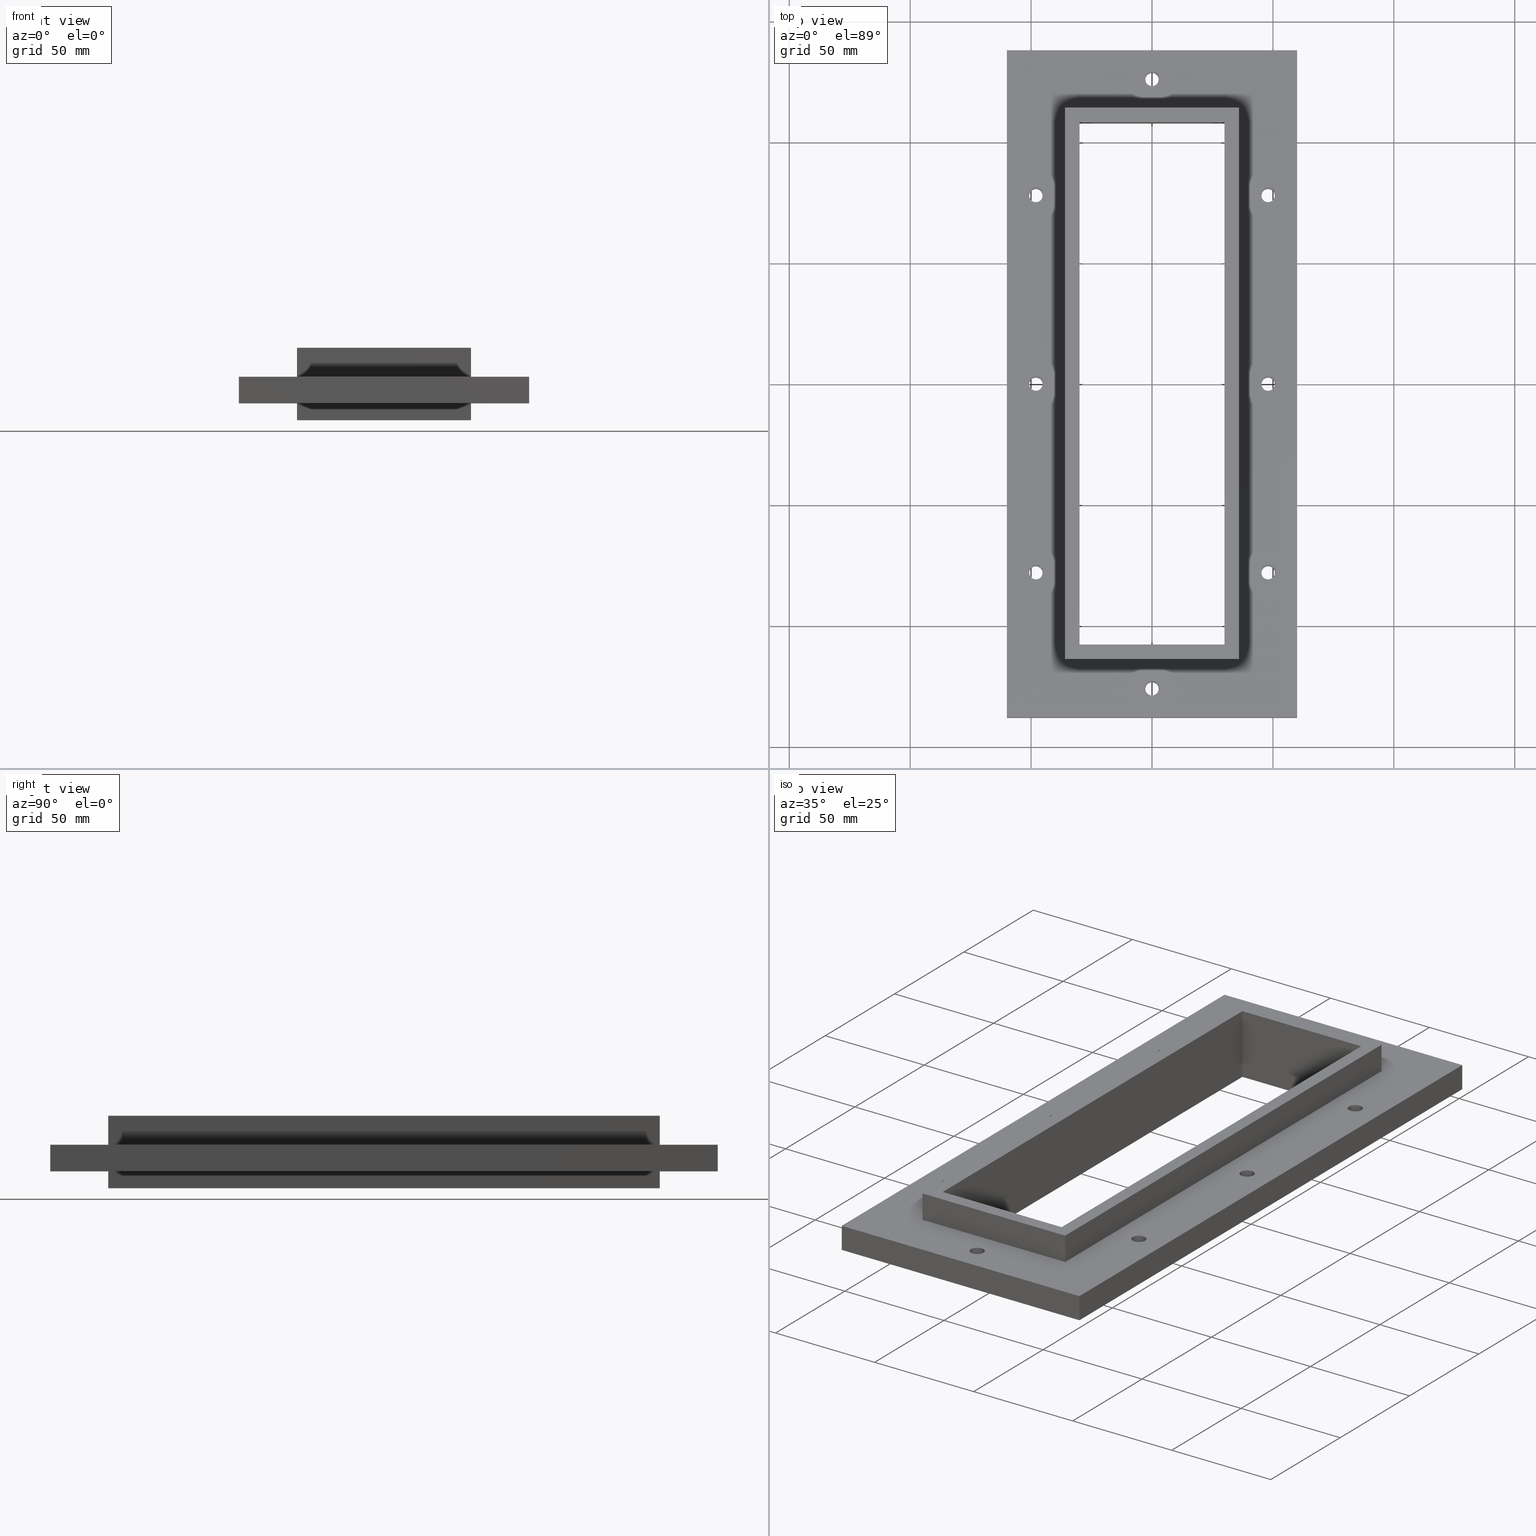
[diagram: canonical four-view strip — front | top / right | iso, engineering-drawing reading convention]
A machine part, canonical four-view strip (front | top / right | iso — engineering-drawing reading convention). The complete STEP part file that produces these views, byte-faithful:
ISO-10303-21;
HEADER;
/* Generated by software containing ST-Developer
 * from STEP Tools, Inc. (www.steptools.com) 
 */

FILE_DESCRIPTION(
/* description */ (''),
/* implementation_level */ '2;1');

FILE_NAME(
/* name */ 'C:\\Temp\\Generator\\Dump\\Step\\CLH5X1.stp',
/* time_stamp */ '2024-08-28T14:54:43+02:00',
/* author */ ('se-milkar'),
/* organization */ (''),
/* preprocessor_version */ 'ST-DEVELOPER v18.1',
/* originating_system */ 'Autodesk Inventor 2021',
/* authorisation */ '');

FILE_SCHEMA (('AUTOMOTIVE_DESIGN { 1 0 10303 214 3 1 1 }'));
ENDSEC;

DATA;
#10=MECHANICAL_DESIGN_GEOMETRIC_PRESENTATION_REPRESENTATION('',(#13,#14,
#15,#16,#17,#18,#19,#20,#21,#22,#23,#24,#25,#26,#27,#28,#29,#30,#31,#32,
#33,#34,#35,#36),#1682);
#11=SHAPE_REPRESENTATION_RELATIONSHIP('SRR','None',#1689,#12);
#12=ADVANCED_BREP_SHAPE_REPRESENTATION('',(#37,#38),#1681);
#13=STYLED_ITEM('',(#1698),#37);
#14=STYLED_ITEM('',(#1699),#1001);
#15=STYLED_ITEM('',(#1699),#1002);
#16=STYLED_ITEM('',(#1699),#1003);
#17=STYLED_ITEM('',(#1699),#1004);
#18=STYLED_ITEM('',(#1699),#1005);
#19=STYLED_ITEM('',(#1699),#1006);
#20=STYLED_ITEM('',(#1699),#1007);
#21=STYLED_ITEM('',(#1699),#1008);
#22=STYLED_ITEM('',(#1699),#1009);
#23=STYLED_ITEM('',(#1699),#1010);
#24=STYLED_ITEM('',(#1699),#1011);
#25=STYLED_ITEM('',(#1699),#1012);
#26=STYLED_ITEM('',(#1699),#1013);
#27=STYLED_ITEM('',(#1699),#1014);
#28=STYLED_ITEM('',(#1699),#1015);
#29=STYLED_ITEM('',(#1699),#1016);
#30=STYLED_ITEM('',(#1699),#1017);
#31=STYLED_ITEM('',(#1699),#1018);
#32=STYLED_ITEM('',(#1699),#1019);
#33=STYLED_ITEM('',(#1699),#1020);
#34=STYLED_ITEM('',(#1699),#1021);
#35=STYLED_ITEM('',(#1699),#1022);
#36=STYLED_ITEM('',(#1698),#38);
#37=MANIFOLD_SOLID_BREP('Solid1',#1023);
#38=MANIFOLD_SOLID_BREP('Solid2',#1024);
#39=FACE_BOUND('',#174,.T.);
#40=FACE_BOUND('',#177,.T.);
#41=FACE_BOUND('',#180,.T.);
#42=FACE_BOUND('',#181,.T.);
#43=FACE_BOUND('',#182,.T.);
#44=FACE_BOUND('',#183,.T.);
#45=FACE_BOUND('',#184,.T.);
#46=FACE_BOUND('',#185,.T.);
#47=FACE_BOUND('',#186,.T.);
#48=FACE_BOUND('',#187,.T.);
#49=FACE_BOUND('',#188,.T.);
#50=FACE_BOUND('',#191,.T.);
#51=FACE_BOUND('',#192,.T.);
#52=FACE_BOUND('',#193,.T.);
#53=FACE_BOUND('',#194,.T.);
#54=FACE_BOUND('',#195,.T.);
#55=FACE_BOUND('',#196,.T.);
#56=FACE_BOUND('',#197,.T.);
#57=FACE_BOUND('',#198,.T.);
#58=FACE_BOUND('',#199,.T.);
#59=FACE_BOUND('',#226,.T.);
#60=FACE_BOUND('',#227,.T.);
#61=FACE_BOUND('',#228,.T.);
#62=FACE_BOUND('',#229,.T.);
#63=FACE_BOUND('',#230,.T.);
#64=FACE_BOUND('',#231,.T.);
#65=FACE_BOUND('',#232,.T.);
#66=FACE_BOUND('',#233,.T.);
#67=FACE_BOUND('',#234,.T.);
#68=FACE_BOUND('',#236,.T.);
#69=FACE_BOUND('',#237,.T.);
#70=FACE_BOUND('',#238,.T.);
#71=FACE_BOUND('',#239,.T.);
#72=FACE_BOUND('',#240,.T.);
#73=FACE_BOUND('',#241,.T.);
#74=FACE_BOUND('',#242,.T.);
#75=FACE_BOUND('',#243,.T.);
#76=FACE_BOUND('',#244,.T.);
#77=PLANE('',#1068);
#78=PLANE('',#1069);
#79=PLANE('',#1070);
#80=PLANE('',#1071);
#81=PLANE('',#1072);
#82=PLANE('',#1073);
#83=PLANE('',#1074);
#84=PLANE('',#1075);
#85=PLANE('',#1076);
#86=PLANE('',#1077);
#87=PLANE('',#1078);
#88=PLANE('',#1079);
#89=PLANE('',#1080);
#90=PLANE('',#1081);
#91=PLANE('',#1082);
#92=PLANE('',#1083);
#93=PLANE('',#1084);
#94=PLANE('',#1085);
#95=PLANE('',#1086);
#96=PLANE('',#1087);
#97=PLANE('',#1115);
#98=PLANE('',#1119);
#99=PLANE('',#1123);
#100=PLANE('',#1127);
#101=PLANE('',#1128);
#102=PLANE('',#1129);
#103=PLANE('',#1130);
#104=PLANE('',#1131);
#105=PLANE('',#1132);
#106=PLANE('',#1133);
#107=FACE_OUTER_BOUND('',#157,.T.);
#108=FACE_OUTER_BOUND('',#158,.T.);
#109=FACE_OUTER_BOUND('',#159,.T.);
#110=FACE_OUTER_BOUND('',#160,.T.);
#111=FACE_OUTER_BOUND('',#161,.T.);
#112=FACE_OUTER_BOUND('',#162,.T.);
#113=FACE_OUTER_BOUND('',#163,.T.);
#114=FACE_OUTER_BOUND('',#164,.T.);
#115=FACE_OUTER_BOUND('',#165,.T.);
#116=FACE_OUTER_BOUND('',#166,.T.);
#117=FACE_OUTER_BOUND('',#167,.T.);
#118=FACE_OUTER_BOUND('',#168,.T.);
#119=FACE_OUTER_BOUND('',#169,.T.);
#120=FACE_OUTER_BOUND('',#170,.T.);
#121=FACE_OUTER_BOUND('',#171,.T.);
#122=FACE_OUTER_BOUND('',#172,.T.);
#123=FACE_OUTER_BOUND('',#173,.T.);
#124=FACE_OUTER_BOUND('',#175,.T.);
#125=FACE_OUTER_BOUND('',#176,.T.);
#126=FACE_OUTER_BOUND('',#178,.T.);
#127=FACE_OUTER_BOUND('',#179,.T.);
#128=FACE_OUTER_BOUND('',#189,.T.);
#129=FACE_OUTER_BOUND('',#190,.T.);
#130=FACE_OUTER_BOUND('',#200,.T.);
#131=FACE_OUTER_BOUND('',#201,.T.);
#132=FACE_OUTER_BOUND('',#202,.T.);
#133=FACE_OUTER_BOUND('',#203,.T.);
#134=FACE_OUTER_BOUND('',#204,.T.);
#135=FACE_OUTER_BOUND('',#205,.T.);
#136=FACE_OUTER_BOUND('',#206,.T.);
#137=FACE_OUTER_BOUND('',#207,.T.);
#138=FACE_OUTER_BOUND('',#208,.T.);
#139=FACE_OUTER_BOUND('',#209,.T.);
#140=FACE_OUTER_BOUND('',#210,.T.);
#141=FACE_OUTER_BOUND('',#211,.T.);
#142=FACE_OUTER_BOUND('',#212,.T.);
#143=FACE_OUTER_BOUND('',#213,.T.);
#144=FACE_OUTER_BOUND('',#214,.T.);
#145=FACE_OUTER_BOUND('',#215,.T.);
#146=FACE_OUTER_BOUND('',#216,.T.);
#147=FACE_OUTER_BOUND('',#217,.T.);
#148=FACE_OUTER_BOUND('',#218,.T.);
#149=FACE_OUTER_BOUND('',#219,.T.);
#150=FACE_OUTER_BOUND('',#220,.T.);
#151=FACE_OUTER_BOUND('',#221,.T.);
#152=FACE_OUTER_BOUND('',#222,.T.);
#153=FACE_OUTER_BOUND('',#223,.T.);
#154=FACE_OUTER_BOUND('',#224,.T.);
#155=FACE_OUTER_BOUND('',#225,.T.);
#156=FACE_OUTER_BOUND('',#235,.T.);
#157=EDGE_LOOP('',(#689,#690,#691,#692));
#158=EDGE_LOOP('',(#693,#694,#695,#696));
#159=EDGE_LOOP('',(#697,#698,#699,#700));
#160=EDGE_LOOP('',(#701,#702,#703,#704));
#161=EDGE_LOOP('',(#705,#706,#707,#708));
#162=EDGE_LOOP('',(#709,#710,#711,#712));
#163=EDGE_LOOP('',(#713,#714,#715,#716));
#164=EDGE_LOOP('',(#717,#718,#719,#720));
#165=EDGE_LOOP('',(#721,#722,#723,#724));
#166=EDGE_LOOP('',(#725,#726,#727,#728));
#167=EDGE_LOOP('',(#729,#730,#731,#732));
#168=EDGE_LOOP('',(#733,#734,#735,#736));
#169=EDGE_LOOP('',(#737,#738,#739,#740));
#170=EDGE_LOOP('',(#741,#742,#743,#744));
#171=EDGE_LOOP('',(#745,#746,#747,#748));
#172=EDGE_LOOP('',(#749,#750,#751,#752));
#173=EDGE_LOOP('',(#753,#754,#755,#756));
#174=EDGE_LOOP('',(#757,#758,#759,#760));
#175=EDGE_LOOP('',(#761,#762,#763,#764));
#176=EDGE_LOOP('',(#765,#766,#767,#768));
#177=EDGE_LOOP('',(#769,#770,#771,#772));
#178=EDGE_LOOP('',(#773,#774,#775,#776));
#179=EDGE_LOOP('',(#777,#778,#779,#780));
#180=EDGE_LOOP('',(#781));
#181=EDGE_LOOP('',(#782));
#182=EDGE_LOOP('',(#783));
#183=EDGE_LOOP('',(#784));
#184=EDGE_LOOP('',(#785));
#185=EDGE_LOOP('',(#786));
#186=EDGE_LOOP('',(#787));
#187=EDGE_LOOP('',(#788));
#188=EDGE_LOOP('',(#789,#790,#791,#792));
#189=EDGE_LOOP('',(#793,#794,#795,#796));
#190=EDGE_LOOP('',(#797,#798,#799,#800));
#191=EDGE_LOOP('',(#801));
#192=EDGE_LOOP('',(#802));
#193=EDGE_LOOP('',(#803));
#194=EDGE_LOOP('',(#804));
#195=EDGE_LOOP('',(#805));
#196=EDGE_LOOP('',(#806));
#197=EDGE_LOOP('',(#807));
#198=EDGE_LOOP('',(#808));
#199=EDGE_LOOP('',(#809,#810,#811,#812));
#200=EDGE_LOOP('',(#813,#814,#815,#816));
#201=EDGE_LOOP('',(#817,#818,#819,#820));
#202=EDGE_LOOP('',(#821,#822,#823,#824));
#203=EDGE_LOOP('',(#825,#826,#827,#828));
#204=EDGE_LOOP('',(#829,#830,#831,#832));
#205=EDGE_LOOP('',(#833,#834,#835,#836));
#206=EDGE_LOOP('',(#837,#838,#839,#840));
#207=EDGE_LOOP('',(#841,#842,#843,#844));
#208=EDGE_LOOP('',(#845,#846,#847,#848));
#209=EDGE_LOOP('',(#849,#850,#851,#852));
#210=EDGE_LOOP('',(#853,#854,#855,#856));
#211=EDGE_LOOP('',(#857,#858,#859,#860));
#212=EDGE_LOOP('',(#861,#862,#863,#864));
#213=EDGE_LOOP('',(#865,#866,#867,#868));
#214=EDGE_LOOP('',(#869,#870,#871,#872));
#215=EDGE_LOOP('',(#873,#874,#875,#876));
#216=EDGE_LOOP('',(#877,#878,#879,#880));
#217=EDGE_LOOP('',(#881,#882,#883,#884));
#218=EDGE_LOOP('',(#885,#886,#887,#888));
#219=EDGE_LOOP('',(#889,#890,#891,#892));
#220=EDGE_LOOP('',(#893,#894,#895,#896));
#221=EDGE_LOOP('',(#897,#898,#899,#900));
#222=EDGE_LOOP('',(#901,#902,#903,#904));
#223=EDGE_LOOP('',(#905,#906,#907,#908));
#224=EDGE_LOOP('',(#909,#910,#911,#912));
#225=EDGE_LOOP('',(#913,#914,#915,#916));
#226=EDGE_LOOP('',(#917));
#227=EDGE_LOOP('',(#918));
#228=EDGE_LOOP('',(#919));
#229=EDGE_LOOP('',(#920));
#230=EDGE_LOOP('',(#921));
#231=EDGE_LOOP('',(#922));
#232=EDGE_LOOP('',(#923));
#233=EDGE_LOOP('',(#924));
#234=EDGE_LOOP('',(#925,#926,#927,#928,#929,#930,#931,#932));
#235=EDGE_LOOP('',(#933,#934,#935,#936));
#236=EDGE_LOOP('',(#937));
#237=EDGE_LOOP('',(#938));
#238=EDGE_LOOP('',(#939));
#239=EDGE_LOOP('',(#940));
#240=EDGE_LOOP('',(#941));
#241=EDGE_LOOP('',(#942));
#242=EDGE_LOOP('',(#943));
#243=EDGE_LOOP('',(#944));
#244=EDGE_LOOP('',(#945,#946,#947,#948,#949,#950,#951,#952));
#245=LINE('',#1413,#337);
#246=LINE('',#1419,#338);
#247=LINE('',#1425,#339);
#248=LINE('',#1431,#340);
#249=LINE('',#1437,#341);
#250=LINE('',#1443,#342);
#251=LINE('',#1449,#343);
#252=LINE('',#1455,#344);
#253=LINE('',#1460,#345);
#254=LINE('',#1462,#346);
#255=LINE('',#1464,#347);
#256=LINE('',#1465,#348);
#257=LINE('',#1469,#349);
#258=LINE('',#1471,#350);
#259=LINE('',#1473,#351);
#260=LINE('',#1474,#352);
#261=LINE('',#1478,#353);
#262=LINE('',#1480,#354);
#263=LINE('',#1482,#355);
#264=LINE('',#1483,#356);
#265=LINE('',#1487,#357);
#266=LINE('',#1489,#358);
#267=LINE('',#1491,#359);
#268=LINE('',#1492,#360);
#269=LINE('',#1496,#361);
#270=LINE('',#1497,#362);
#271=LINE('',#1498,#363);
#272=LINE('',#1502,#364);
#273=LINE('',#1503,#365);
#274=LINE('',#1504,#366);
#275=LINE('',#1508,#367);
#276=LINE('',#1509,#368);
#277=LINE('',#1510,#369);
#278=LINE('',#1514,#370);
#279=LINE('',#1515,#371);
#280=LINE('',#1516,#372);
#281=LINE('',#1519,#373);
#282=LINE('',#1520,#374);
#283=LINE('',#1522,#375);
#284=LINE('',#1523,#376);
#285=LINE('',#1526,#377);
#286=LINE('',#1527,#378);
#287=LINE('',#1530,#379);
#288=LINE('',#1531,#380);
#289=LINE('',#1532,#381);
#290=LINE('',#1535,#382);
#291=LINE('',#1536,#383);
#292=LINE('',#1539,#384);
#293=LINE('',#1540,#385);
#294=LINE('',#1541,#386);
#295=LINE('',#1544,#387);
#296=LINE('',#1545,#388);
#297=LINE('',#1547,#389);
#298=LINE('',#1549,#390);
#299=LINE('',#1550,#391);
#300=LINE('',#1552,#392);
#301=LINE('',#1561,#393);
#302=LINE('',#1567,#394);
#303=LINE('',#1573,#395);
#304=LINE('',#1579,#396);
#305=LINE('',#1585,#397);
#306=LINE('',#1591,#398);
#307=LINE('',#1597,#399);
#308=LINE('',#1603,#400);
#309=LINE('',#1610,#401);
#310=LINE('',#1613,#402);
#311=LINE('',#1616,#403);
#312=LINE('',#1618,#404);
#313=LINE('',#1619,#405);
#314=LINE('',#1625,#406);
#315=LINE('',#1628,#407);
#316=LINE('',#1630,#408);
#317=LINE('',#1631,#409);
#318=LINE('',#1637,#410);
#319=LINE('',#1640,#411);
#320=LINE('',#1642,#412);
#321=LINE('',#1643,#413);
#322=LINE('',#1649,#414);
#323=LINE('',#1651,#415);
#324=LINE('',#1652,#416);
#325=LINE('',#1656,#417);
#326=LINE('',#1658,#418);
#327=LINE('',#1660,#419);
#328=LINE('',#1661,#420);
#329=LINE('',#1664,#421);
#330=LINE('',#1666,#422);
#331=LINE('',#1667,#423);
#332=LINE('',#1670,#424);
#333=LINE('',#1672,#425);
#334=LINE('',#1673,#426);
#335=LINE('',#1675,#427);
#336=LINE('',#1676,#428);
#337=VECTOR('',#1140,3.15);
#338=VECTOR('',#1147,3.15);
#339=VECTOR('',#1154,3.15);
#340=VECTOR('',#1161,3.15);
#341=VECTOR('',#1168,3.15);
#342=VECTOR('',#1175,3.15);
#343=VECTOR('',#1182,3.15);
#344=VECTOR('',#1189,3.15);
#345=VECTOR('',#1194,10.);
#346=VECTOR('',#1195,10.);
#347=VECTOR('',#1196,10.);
#348=VECTOR('',#1197,10.);
#349=VECTOR('',#1200,10.);
#350=VECTOR('',#1201,10.);
#351=VECTOR('',#1202,10.);
#352=VECTOR('',#1203,10.);
#353=VECTOR('',#1206,10.);
#354=VECTOR('',#1207,10.);
#355=VECTOR('',#1208,10.);
#356=VECTOR('',#1209,10.);
#357=VECTOR('',#1212,10.);
#358=VECTOR('',#1213,10.);
#359=VECTOR('',#1214,10.);
#360=VECTOR('',#1215,10.);
#361=VECTOR('',#1218,10.);
#362=VECTOR('',#1219,10.);
#363=VECTOR('',#1220,10.);
#364=VECTOR('',#1223,10.);
#365=VECTOR('',#1224,10.);
#366=VECTOR('',#1225,10.);
#367=VECTOR('',#1228,10.);
#368=VECTOR('',#1229,10.);
#369=VECTOR('',#1230,10.);
#370=VECTOR('',#1233,10.);
#371=VECTOR('',#1234,10.);
#372=VECTOR('',#1235,10.);
#373=VECTOR('',#1238,10.);
#374=VECTOR('',#1239,10.);
#375=VECTOR('',#1240,10.);
#376=VECTOR('',#1241,10.);
#377=VECTOR('',#1244,10.);
#378=VECTOR('',#1245,10.);
#379=VECTOR('',#1248,10.);
#380=VECTOR('',#1249,10.);
#381=VECTOR('',#1250,10.);
#382=VECTOR('',#1253,10.);
#383=VECTOR('',#1254,10.);
#384=VECTOR('',#1257,10.);
#385=VECTOR('',#1258,10.);
#386=VECTOR('',#1259,10.);
#387=VECTOR('',#1262,10.);
#388=VECTOR('',#1263,10.);
#389=VECTOR('',#1266,10.);
#390=VECTOR('',#1267,10.);
#391=VECTOR('',#1268,10.);
#392=VECTOR('',#1271,10.);
#393=VECTOR('',#1284,2.75);
#394=VECTOR('',#1291,2.75);
#395=VECTOR('',#1298,2.75);
#396=VECTOR('',#1305,2.75);
#397=VECTOR('',#1312,2.75);
#398=VECTOR('',#1319,2.75);
#399=VECTOR('',#1326,2.75);
#400=VECTOR('',#1333,2.75);
#401=VECTOR('',#1340,10.);
#402=VECTOR('',#1343,10.);
#403=VECTOR('',#1346,10.);
#404=VECTOR('',#1347,10.);
#405=VECTOR('',#1348,10.);
#406=VECTOR('',#1355,10.);
#407=VECTOR('',#1358,10.);
#408=VECTOR('',#1359,10.);
#409=VECTOR('',#1360,10.);
#410=VECTOR('',#1367,10.);
#411=VECTOR('',#1370,10.);
#412=VECTOR('',#1371,10.);
#413=VECTOR('',#1372,10.);
#414=VECTOR('',#1379,10.);
#415=VECTOR('',#1382,10.);
#416=VECTOR('',#1383,10.);
#417=VECTOR('',#1386,10.);
#418=VECTOR('',#1387,10.);
#419=VECTOR('',#1388,10.);
#420=VECTOR('',#1389,10.);
#421=VECTOR('',#1392,10.);
#422=VECTOR('',#1393,10.);
#423=VECTOR('',#1394,10.);
#424=VECTOR('',#1397,10.);
#425=VECTOR('',#1398,10.);
#426=VECTOR('',#1399,10.);
#427=VECTOR('',#1402,10.);
#428=VECTOR('',#1403,10.);
#429=CIRCLE('',#1045,3.15);
#430=CIRCLE('',#1046,3.15);
#431=CIRCLE('',#1048,3.15);
#432=CIRCLE('',#1049,3.15);
#433=CIRCLE('',#1051,3.15);
#434=CIRCLE('',#1052,3.15);
#435=CIRCLE('',#1054,3.15);
#436=CIRCLE('',#1055,3.15);
#437=CIRCLE('',#1057,3.15);
#438=CIRCLE('',#1058,3.15);
#439=CIRCLE('',#1060,3.15);
#440=CIRCLE('',#1061,3.15);
#441=CIRCLE('',#1063,3.15);
#442=CIRCLE('',#1064,3.15);
#443=CIRCLE('',#1066,3.15);
#444=CIRCLE('',#1067,3.15);
#445=CIRCLE('',#1089,2.75);
#446=CIRCLE('',#1090,2.75);
#447=CIRCLE('',#1092,2.75);
#448=CIRCLE('',#1093,2.75);
#449=CIRCLE('',#1095,2.75);
#450=CIRCLE('',#1096,2.75);
#451=CIRCLE('',#1098,2.75);
#452=CIRCLE('',#1099,2.75);
#453=CIRCLE('',#1101,2.75);
#454=CIRCLE('',#1102,2.75);
#455=CIRCLE('',#1104,2.75);
#456=CIRCLE('',#1105,2.75);
#457=CIRCLE('',#1107,2.75);
#458=CIRCLE('',#1108,2.75);
#459=CIRCLE('',#1110,2.75);
#460=CIRCLE('',#1111,2.75);
#461=CIRCLE('',#1113,3.99999999999997);
#462=CIRCLE('',#1114,3.99999999999997);
#463=CIRCLE('',#1117,3.99999999999995);
#464=CIRCLE('',#1118,3.99999999999995);
#465=CIRCLE('',#1121,4.00000000000002);
#466=CIRCLE('',#1122,4.00000000000002);
#467=CIRCLE('',#1125,4.);
#468=CIRCLE('',#1126,4.);
#469=VERTEX_POINT('',#1410);
#470=VERTEX_POINT('',#1412);
#471=VERTEX_POINT('',#1416);
#472=VERTEX_POINT('',#1418);
#473=VERTEX_POINT('',#1422);
#474=VERTEX_POINT('',#1424);
#475=VERTEX_POINT('',#1428);
#476=VERTEX_POINT('',#1430);
#477=VERTEX_POINT('',#1434);
#478=VERTEX_POINT('',#1436);
#479=VERTEX_POINT('',#1440);
#480=VERTEX_POINT('',#1442);
#481=VERTEX_POINT('',#1446);
#482=VERTEX_POINT('',#1448);
#483=VERTEX_POINT('',#1452);
#484=VERTEX_POINT('',#1454);
#485=VERTEX_POINT('',#1458);
#486=VERTEX_POINT('',#1459);
#487=VERTEX_POINT('',#1461);
#488=VERTEX_POINT('',#1463);
#489=VERTEX_POINT('',#1467);
#490=VERTEX_POINT('',#1468);
#491=VERTEX_POINT('',#1470);
#492=VERTEX_POINT('',#1472);
#493=VERTEX_POINT('',#1476);
#494=VERTEX_POINT('',#1477);
#495=VERTEX_POINT('',#1479);
#496=VERTEX_POINT('',#1481);
#497=VERTEX_POINT('',#1485);
#498=VERTEX_POINT('',#1486);
#499=VERTEX_POINT('',#1488);
#500=VERTEX_POINT('',#1490);
#501=VERTEX_POINT('',#1494);
#502=VERTEX_POINT('',#1495);
#503=VERTEX_POINT('',#1500);
#504=VERTEX_POINT('',#1501);
#505=VERTEX_POINT('',#1506);
#506=VERTEX_POINT('',#1507);
#507=VERTEX_POINT('',#1512);
#508=VERTEX_POINT('',#1513);
#509=VERTEX_POINT('',#1518);
#510=VERTEX_POINT('',#1521);
#511=VERTEX_POINT('',#1525);
#512=VERTEX_POINT('',#1529);
#513=VERTEX_POINT('',#1534);
#514=VERTEX_POINT('',#1538);
#515=VERTEX_POINT('',#1543);
#516=VERTEX_POINT('',#1548);
#517=VERTEX_POINT('',#1558);
#518=VERTEX_POINT('',#1560);
#519=VERTEX_POINT('',#1564);
#520=VERTEX_POINT('',#1566);
#521=VERTEX_POINT('',#1570);
#522=VERTEX_POINT('',#1572);
#523=VERTEX_POINT('',#1576);
#524=VERTEX_POINT('',#1578);
#525=VERTEX_POINT('',#1582);
#526=VERTEX_POINT('',#1584);
#527=VERTEX_POINT('',#1588);
#528=VERTEX_POINT('',#1590);
#529=VERTEX_POINT('',#1594);
#530=VERTEX_POINT('',#1596);
#531=VERTEX_POINT('',#1600);
#532=VERTEX_POINT('',#1602);
#533=VERTEX_POINT('',#1606);
#534=VERTEX_POINT('',#1607);
#535=VERTEX_POINT('',#1609);
#536=VERTEX_POINT('',#1611);
#537=VERTEX_POINT('',#1615);
#538=VERTEX_POINT('',#1617);
#539=VERTEX_POINT('',#1621);
#540=VERTEX_POINT('',#1623);
#541=VERTEX_POINT('',#1627);
#542=VERTEX_POINT('',#1629);
#543=VERTEX_POINT('',#1633);
#544=VERTEX_POINT('',#1635);
#545=VERTEX_POINT('',#1639);
#546=VERTEX_POINT('',#1641);
#547=VERTEX_POINT('',#1645);
#548=VERTEX_POINT('',#1647);
#549=VERTEX_POINT('',#1654);
#550=VERTEX_POINT('',#1655);
#551=VERTEX_POINT('',#1657);
#552=VERTEX_POINT('',#1659);
#553=VERTEX_POINT('',#1663);
#554=VERTEX_POINT('',#1665);
#555=VERTEX_POINT('',#1669);
#556=VERTEX_POINT('',#1671);
#557=EDGE_CURVE('',#469,#469,#429,.T.);
#558=EDGE_CURVE('',#469,#470,#245,.T.);
#559=EDGE_CURVE('',#470,#470,#430,.T.);
#560=EDGE_CURVE('',#471,#471,#431,.T.);
#561=EDGE_CURVE('',#471,#472,#246,.T.);
#562=EDGE_CURVE('',#472,#472,#432,.T.);
#563=EDGE_CURVE('',#473,#473,#433,.T.);
#564=EDGE_CURVE('',#473,#474,#247,.T.);
#565=EDGE_CURVE('',#474,#474,#434,.T.);
#566=EDGE_CURVE('',#475,#475,#435,.T.);
#567=EDGE_CURVE('',#475,#476,#248,.T.);
#568=EDGE_CURVE('',#476,#476,#436,.T.);
#569=EDGE_CURVE('',#477,#477,#437,.T.);
#570=EDGE_CURVE('',#477,#478,#249,.T.);
#571=EDGE_CURVE('',#478,#478,#438,.T.);
#572=EDGE_CURVE('',#479,#479,#439,.T.);
#573=EDGE_CURVE('',#479,#480,#250,.T.);
#574=EDGE_CURVE('',#480,#480,#440,.T.);
#575=EDGE_CURVE('',#481,#481,#441,.T.);
#576=EDGE_CURVE('',#481,#482,#251,.T.);
#577=EDGE_CURVE('',#482,#482,#442,.T.);
#578=EDGE_CURVE('',#483,#483,#443,.T.);
#579=EDGE_CURVE('',#483,#484,#252,.T.);
#580=EDGE_CURVE('',#484,#484,#444,.T.);
#581=EDGE_CURVE('',#485,#486,#253,.T.);
#582=EDGE_CURVE('',#486,#487,#254,.T.);
#583=EDGE_CURVE('',#488,#487,#255,.T.);
#584=EDGE_CURVE('',#485,#488,#256,.T.);
#585=EDGE_CURVE('',#489,#490,#257,.T.);
#586=EDGE_CURVE('',#490,#491,#258,.T.);
#587=EDGE_CURVE('',#492,#491,#259,.T.);
#588=EDGE_CURVE('',#489,#492,#260,.T.);
#589=EDGE_CURVE('',#493,#494,#261,.T.);
#590=EDGE_CURVE('',#494,#495,#262,.T.);
#591=EDGE_CURVE('',#496,#495,#263,.T.);
#592=EDGE_CURVE('',#493,#496,#264,.T.);
#593=EDGE_CURVE('',#497,#498,#265,.T.);
#594=EDGE_CURVE('',#498,#499,#266,.T.);
#595=EDGE_CURVE('',#500,#499,#267,.T.);
#596=EDGE_CURVE('',#497,#500,#268,.T.);
#597=EDGE_CURVE('',#501,#502,#269,.T.);
#598=EDGE_CURVE('',#502,#486,#270,.T.);
#599=EDGE_CURVE('',#501,#485,#271,.T.);
#600=EDGE_CURVE('',#503,#504,#272,.T.);
#601=EDGE_CURVE('',#504,#490,#273,.T.);
#602=EDGE_CURVE('',#503,#489,#274,.T.);
#603=EDGE_CURVE('',#505,#506,#275,.T.);
#604=EDGE_CURVE('',#506,#494,#276,.T.);
#605=EDGE_CURVE('',#505,#493,#277,.T.);
#606=EDGE_CURVE('',#507,#508,#278,.T.);
#607=EDGE_CURVE('',#508,#498,#279,.T.);
#608=EDGE_CURVE('',#507,#497,#280,.T.);
#609=EDGE_CURVE('',#509,#507,#281,.T.);
#610=EDGE_CURVE('',#509,#500,#282,.T.);
#611=EDGE_CURVE('',#510,#487,#283,.T.);
#612=EDGE_CURVE('',#510,#502,#284,.T.);
#613=EDGE_CURVE('',#511,#510,#285,.T.);
#614=EDGE_CURVE('',#511,#501,#286,.T.);
#615=EDGE_CURVE('',#512,#491,#287,.T.);
#616=EDGE_CURVE('',#512,#504,#288,.T.);
#617=EDGE_CURVE('',#511,#488,#289,.T.);
#618=EDGE_CURVE('',#513,#512,#290,.T.);
#619=EDGE_CURVE('',#513,#503,#291,.T.);
#620=EDGE_CURVE('',#514,#495,#292,.T.);
#621=EDGE_CURVE('',#514,#506,#293,.T.);
#622=EDGE_CURVE('',#513,#492,#294,.T.);
#623=EDGE_CURVE('',#515,#514,#295,.T.);
#624=EDGE_CURVE('',#515,#505,#296,.T.);
#625=EDGE_CURVE('',#515,#496,#297,.T.);
#626=EDGE_CURVE('',#499,#516,#298,.T.);
#627=EDGE_CURVE('',#516,#508,#299,.T.);
#628=EDGE_CURVE('',#509,#516,#300,.T.);
#629=EDGE_CURVE('',#517,#517,#445,.T.);
#630=EDGE_CURVE('',#517,#518,#301,.T.);
#631=EDGE_CURVE('',#518,#518,#446,.T.);
#632=EDGE_CURVE('',#519,#519,#447,.T.);
#633=EDGE_CURVE('',#519,#520,#302,.T.);
#634=EDGE_CURVE('',#520,#520,#448,.T.);
#635=EDGE_CURVE('',#521,#521,#449,.T.);
#636=EDGE_CURVE('',#521,#522,#303,.T.);
#637=EDGE_CURVE('',#522,#522,#450,.T.);
#638=EDGE_CURVE('',#523,#523,#451,.T.);
#639=EDGE_CURVE('',#523,#524,#304,.T.);
#640=EDGE_CURVE('',#524,#524,#452,.T.);
#641=EDGE_CURVE('',#525,#525,#453,.T.);
#642=EDGE_CURVE('',#525,#526,#305,.T.);
#643=EDGE_CURVE('',#526,#526,#454,.T.);
#644=EDGE_CURVE('',#527,#527,#455,.T.);
#645=EDGE_CURVE('',#527,#528,#306,.T.);
#646=EDGE_CURVE('',#528,#528,#456,.T.);
#647=EDGE_CURVE('',#529,#529,#457,.T.);
#648=EDGE_CURVE('',#529,#530,#307,.T.);
#649=EDGE_CURVE('',#530,#530,#458,.T.);
#650=EDGE_CURVE('',#531,#531,#459,.T.);
#651=EDGE_CURVE('',#531,#532,#308,.T.);
#652=EDGE_CURVE('',#532,#532,#460,.T.);
#653=EDGE_CURVE('',#533,#534,#461,.T.);
#654=EDGE_CURVE('',#534,#535,#309,.T.);
#655=EDGE_CURVE('',#536,#535,#462,.T.);
#656=EDGE_CURVE('',#533,#536,#310,.T.);
#657=EDGE_CURVE('',#537,#533,#311,.T.);
#658=EDGE_CURVE('',#538,#536,#312,.T.);
#659=EDGE_CURVE('',#537,#538,#313,.T.);
#660=EDGE_CURVE('',#539,#537,#463,.T.);
#661=EDGE_CURVE('',#540,#538,#464,.T.);
#662=EDGE_CURVE('',#539,#540,#314,.T.);
#663=EDGE_CURVE('',#541,#539,#315,.T.);
#664=EDGE_CURVE('',#542,#540,#316,.T.);
#665=EDGE_CURVE('',#541,#542,#317,.T.);
#666=EDGE_CURVE('',#543,#541,#465,.T.);
#667=EDGE_CURVE('',#544,#542,#466,.T.);
#668=EDGE_CURVE('',#543,#544,#318,.T.);
#669=EDGE_CURVE('',#545,#543,#319,.T.);
#670=EDGE_CURVE('',#546,#544,#320,.T.);
#671=EDGE_CURVE('',#545,#546,#321,.T.);
#672=EDGE_CURVE('',#547,#545,#467,.T.);
#673=EDGE_CURVE('',#548,#546,#468,.T.);
#674=EDGE_CURVE('',#547,#548,#322,.T.);
#675=EDGE_CURVE('',#534,#547,#323,.T.);
#676=EDGE_CURVE('',#535,#548,#324,.T.);
#677=EDGE_CURVE('',#549,#550,#325,.T.);
#678=EDGE_CURVE('',#550,#551,#326,.T.);
#679=EDGE_CURVE('',#552,#551,#327,.T.);
#680=EDGE_CURVE('',#549,#552,#328,.T.);
#681=EDGE_CURVE('',#553,#549,#329,.T.);
#682=EDGE_CURVE('',#554,#552,#330,.T.);
#683=EDGE_CURVE('',#553,#554,#331,.T.);
#684=EDGE_CURVE('',#555,#553,#332,.T.);
#685=EDGE_CURVE('',#556,#554,#333,.T.);
#686=EDGE_CURVE('',#555,#556,#334,.T.);
#687=EDGE_CURVE('',#550,#555,#335,.T.);
#688=EDGE_CURVE('',#551,#556,#336,.T.);
#689=ORIENTED_EDGE('',*,*,#557,.F.);
#690=ORIENTED_EDGE('',*,*,#558,.T.);
#691=ORIENTED_EDGE('',*,*,#559,.F.);
#692=ORIENTED_EDGE('',*,*,#558,.F.);
#693=ORIENTED_EDGE('',*,*,#560,.F.);
#694=ORIENTED_EDGE('',*,*,#561,.T.);
#695=ORIENTED_EDGE('',*,*,#562,.F.);
#696=ORIENTED_EDGE('',*,*,#561,.F.);
#697=ORIENTED_EDGE('',*,*,#563,.F.);
#698=ORIENTED_EDGE('',*,*,#564,.T.);
#699=ORIENTED_EDGE('',*,*,#565,.F.);
#700=ORIENTED_EDGE('',*,*,#564,.F.);
#701=ORIENTED_EDGE('',*,*,#566,.F.);
#702=ORIENTED_EDGE('',*,*,#567,.T.);
#703=ORIENTED_EDGE('',*,*,#568,.F.);
#704=ORIENTED_EDGE('',*,*,#567,.F.);
#705=ORIENTED_EDGE('',*,*,#569,.F.);
#706=ORIENTED_EDGE('',*,*,#570,.T.);
#707=ORIENTED_EDGE('',*,*,#571,.F.);
#708=ORIENTED_EDGE('',*,*,#570,.F.);
#709=ORIENTED_EDGE('',*,*,#572,.F.);
#710=ORIENTED_EDGE('',*,*,#573,.T.);
#711=ORIENTED_EDGE('',*,*,#574,.F.);
#712=ORIENTED_EDGE('',*,*,#573,.F.);
#713=ORIENTED_EDGE('',*,*,#575,.F.);
#714=ORIENTED_EDGE('',*,*,#576,.T.);
#715=ORIENTED_EDGE('',*,*,#577,.F.);
#716=ORIENTED_EDGE('',*,*,#576,.F.);
#717=ORIENTED_EDGE('',*,*,#578,.F.);
#718=ORIENTED_EDGE('',*,*,#579,.T.);
#719=ORIENTED_EDGE('',*,*,#580,.F.);
#720=ORIENTED_EDGE('',*,*,#579,.F.);
#721=ORIENTED_EDGE('',*,*,#581,.T.);
#722=ORIENTED_EDGE('',*,*,#582,.T.);
#723=ORIENTED_EDGE('',*,*,#583,.F.);
#724=ORIENTED_EDGE('',*,*,#584,.F.);
#725=ORIENTED_EDGE('',*,*,#585,.T.);
#726=ORIENTED_EDGE('',*,*,#586,.T.);
#727=ORIENTED_EDGE('',*,*,#587,.F.);
#728=ORIENTED_EDGE('',*,*,#588,.F.);
#729=ORIENTED_EDGE('',*,*,#589,.T.);
#730=ORIENTED_EDGE('',*,*,#590,.T.);
#731=ORIENTED_EDGE('',*,*,#591,.F.);
#732=ORIENTED_EDGE('',*,*,#592,.F.);
#733=ORIENTED_EDGE('',*,*,#593,.T.);
#734=ORIENTED_EDGE('',*,*,#594,.T.);
#735=ORIENTED_EDGE('',*,*,#595,.F.);
#736=ORIENTED_EDGE('',*,*,#596,.F.);
#737=ORIENTED_EDGE('',*,*,#597,.T.);
#738=ORIENTED_EDGE('',*,*,#598,.T.);
#739=ORIENTED_EDGE('',*,*,#581,.F.);
#740=ORIENTED_EDGE('',*,*,#599,.F.);
#741=ORIENTED_EDGE('',*,*,#600,.T.);
#742=ORIENTED_EDGE('',*,*,#601,.T.);
#743=ORIENTED_EDGE('',*,*,#585,.F.);
#744=ORIENTED_EDGE('',*,*,#602,.F.);
#745=ORIENTED_EDGE('',*,*,#603,.T.);
#746=ORIENTED_EDGE('',*,*,#604,.T.);
#747=ORIENTED_EDGE('',*,*,#589,.F.);
#748=ORIENTED_EDGE('',*,*,#605,.F.);
#749=ORIENTED_EDGE('',*,*,#606,.T.);
#750=ORIENTED_EDGE('',*,*,#607,.T.);
#751=ORIENTED_EDGE('',*,*,#593,.F.);
#752=ORIENTED_EDGE('',*,*,#608,.F.);
#753=ORIENTED_EDGE('',*,*,#609,.T.);
#754=ORIENTED_EDGE('',*,*,#608,.T.);
#755=ORIENTED_EDGE('',*,*,#596,.T.);
#756=ORIENTED_EDGE('',*,*,#610,.F.);
#757=ORIENTED_EDGE('',*,*,#611,.T.);
#758=ORIENTED_EDGE('',*,*,#582,.F.);
#759=ORIENTED_EDGE('',*,*,#598,.F.);
#760=ORIENTED_EDGE('',*,*,#612,.F.);
#761=ORIENTED_EDGE('',*,*,#613,.T.);
#762=ORIENTED_EDGE('',*,*,#612,.T.);
#763=ORIENTED_EDGE('',*,*,#597,.F.);
#764=ORIENTED_EDGE('',*,*,#614,.F.);
#765=ORIENTED_EDGE('',*,*,#615,.T.);
#766=ORIENTED_EDGE('',*,*,#586,.F.);
#767=ORIENTED_EDGE('',*,*,#601,.F.);
#768=ORIENTED_EDGE('',*,*,#616,.F.);
#769=ORIENTED_EDGE('',*,*,#614,.T.);
#770=ORIENTED_EDGE('',*,*,#599,.T.);
#771=ORIENTED_EDGE('',*,*,#584,.T.);
#772=ORIENTED_EDGE('',*,*,#617,.F.);
#773=ORIENTED_EDGE('',*,*,#618,.T.);
#774=ORIENTED_EDGE('',*,*,#616,.T.);
#775=ORIENTED_EDGE('',*,*,#600,.F.);
#776=ORIENTED_EDGE('',*,*,#619,.F.);
#777=ORIENTED_EDGE('',*,*,#620,.T.);
#778=ORIENTED_EDGE('',*,*,#590,.F.);
#779=ORIENTED_EDGE('',*,*,#604,.F.);
#780=ORIENTED_EDGE('',*,*,#621,.F.);
#781=ORIENTED_EDGE('',*,*,#559,.T.);
#782=ORIENTED_EDGE('',*,*,#562,.T.);
#783=ORIENTED_EDGE('',*,*,#565,.T.);
#784=ORIENTED_EDGE('',*,*,#568,.T.);
#785=ORIENTED_EDGE('',*,*,#571,.T.);
#786=ORIENTED_EDGE('',*,*,#574,.T.);
#787=ORIENTED_EDGE('',*,*,#577,.T.);
#788=ORIENTED_EDGE('',*,*,#580,.T.);
#789=ORIENTED_EDGE('',*,*,#619,.T.);
#790=ORIENTED_EDGE('',*,*,#602,.T.);
#791=ORIENTED_EDGE('',*,*,#588,.T.);
#792=ORIENTED_EDGE('',*,*,#622,.F.);
#793=ORIENTED_EDGE('',*,*,#623,.T.);
#794=ORIENTED_EDGE('',*,*,#621,.T.);
#795=ORIENTED_EDGE('',*,*,#603,.F.);
#796=ORIENTED_EDGE('',*,*,#624,.F.);
#797=ORIENTED_EDGE('',*,*,#624,.T.);
#798=ORIENTED_EDGE('',*,*,#605,.T.);
#799=ORIENTED_EDGE('',*,*,#592,.T.);
#800=ORIENTED_EDGE('',*,*,#625,.F.);
#801=ORIENTED_EDGE('',*,*,#557,.T.);
#802=ORIENTED_EDGE('',*,*,#560,.T.);
#803=ORIENTED_EDGE('',*,*,#563,.T.);
#804=ORIENTED_EDGE('',*,*,#566,.T.);
#805=ORIENTED_EDGE('',*,*,#569,.T.);
#806=ORIENTED_EDGE('',*,*,#572,.T.);
#807=ORIENTED_EDGE('',*,*,#575,.T.);
#808=ORIENTED_EDGE('',*,*,#578,.T.);
#809=ORIENTED_EDGE('',*,*,#626,.F.);
#810=ORIENTED_EDGE('',*,*,#594,.F.);
#811=ORIENTED_EDGE('',*,*,#607,.F.);
#812=ORIENTED_EDGE('',*,*,#627,.F.);
#813=ORIENTED_EDGE('',*,*,#628,.T.);
#814=ORIENTED_EDGE('',*,*,#627,.T.);
#815=ORIENTED_EDGE('',*,*,#606,.F.);
#816=ORIENTED_EDGE('',*,*,#609,.F.);
#817=ORIENTED_EDGE('',*,*,#587,.T.);
#818=ORIENTED_EDGE('',*,*,#615,.F.);
#819=ORIENTED_EDGE('',*,*,#618,.F.);
#820=ORIENTED_EDGE('',*,*,#622,.T.);
#821=ORIENTED_EDGE('',*,*,#583,.T.);
#822=ORIENTED_EDGE('',*,*,#611,.F.);
#823=ORIENTED_EDGE('',*,*,#613,.F.);
#824=ORIENTED_EDGE('',*,*,#617,.T.);
#825=ORIENTED_EDGE('',*,*,#591,.T.);
#826=ORIENTED_EDGE('',*,*,#620,.F.);
#827=ORIENTED_EDGE('',*,*,#623,.F.);
#828=ORIENTED_EDGE('',*,*,#625,.T.);
#829=ORIENTED_EDGE('',*,*,#595,.T.);
#830=ORIENTED_EDGE('',*,*,#626,.T.);
#831=ORIENTED_EDGE('',*,*,#628,.F.);
#832=ORIENTED_EDGE('',*,*,#610,.T.);
#833=ORIENTED_EDGE('',*,*,#629,.F.);
#834=ORIENTED_EDGE('',*,*,#630,.T.);
#835=ORIENTED_EDGE('',*,*,#631,.F.);
#836=ORIENTED_EDGE('',*,*,#630,.F.);
#837=ORIENTED_EDGE('',*,*,#632,.F.);
#838=ORIENTED_EDGE('',*,*,#633,.T.);
#839=ORIENTED_EDGE('',*,*,#634,.F.);
#840=ORIENTED_EDGE('',*,*,#633,.F.);
#841=ORIENTED_EDGE('',*,*,#635,.F.);
#842=ORIENTED_EDGE('',*,*,#636,.T.);
#843=ORIENTED_EDGE('',*,*,#637,.F.);
#844=ORIENTED_EDGE('',*,*,#636,.F.);
#845=ORIENTED_EDGE('',*,*,#638,.F.);
#846=ORIENTED_EDGE('',*,*,#639,.T.);
#847=ORIENTED_EDGE('',*,*,#640,.F.);
#848=ORIENTED_EDGE('',*,*,#639,.F.);
#849=ORIENTED_EDGE('',*,*,#641,.F.);
#850=ORIENTED_EDGE('',*,*,#642,.T.);
#851=ORIENTED_EDGE('',*,*,#643,.F.);
#852=ORIENTED_EDGE('',*,*,#642,.F.);
#853=ORIENTED_EDGE('',*,*,#644,.F.);
#854=ORIENTED_EDGE('',*,*,#645,.T.);
#855=ORIENTED_EDGE('',*,*,#646,.F.);
#856=ORIENTED_EDGE('',*,*,#645,.F.);
#857=ORIENTED_EDGE('',*,*,#647,.F.);
#858=ORIENTED_EDGE('',*,*,#648,.T.);
#859=ORIENTED_EDGE('',*,*,#649,.F.);
#860=ORIENTED_EDGE('',*,*,#648,.F.);
#861=ORIENTED_EDGE('',*,*,#650,.F.);
#862=ORIENTED_EDGE('',*,*,#651,.T.);
#863=ORIENTED_EDGE('',*,*,#652,.F.);
#864=ORIENTED_EDGE('',*,*,#651,.F.);
#865=ORIENTED_EDGE('',*,*,#653,.T.);
#866=ORIENTED_EDGE('',*,*,#654,.T.);
#867=ORIENTED_EDGE('',*,*,#655,.F.);
#868=ORIENTED_EDGE('',*,*,#656,.F.);
#869=ORIENTED_EDGE('',*,*,#657,.T.);
#870=ORIENTED_EDGE('',*,*,#656,.T.);
#871=ORIENTED_EDGE('',*,*,#658,.F.);
#872=ORIENTED_EDGE('',*,*,#659,.F.);
#873=ORIENTED_EDGE('',*,*,#660,.T.);
#874=ORIENTED_EDGE('',*,*,#659,.T.);
#875=ORIENTED_EDGE('',*,*,#661,.F.);
#876=ORIENTED_EDGE('',*,*,#662,.F.);
#877=ORIENTED_EDGE('',*,*,#663,.T.);
#878=ORIENTED_EDGE('',*,*,#662,.T.);
#879=ORIENTED_EDGE('',*,*,#664,.F.);
#880=ORIENTED_EDGE('',*,*,#665,.F.);
#881=ORIENTED_EDGE('',*,*,#666,.T.);
#882=ORIENTED_EDGE('',*,*,#665,.T.);
#883=ORIENTED_EDGE('',*,*,#667,.F.);
#884=ORIENTED_EDGE('',*,*,#668,.F.);
#885=ORIENTED_EDGE('',*,*,#669,.T.);
#886=ORIENTED_EDGE('',*,*,#668,.T.);
#887=ORIENTED_EDGE('',*,*,#670,.F.);
#888=ORIENTED_EDGE('',*,*,#671,.F.);
#889=ORIENTED_EDGE('',*,*,#672,.T.);
#890=ORIENTED_EDGE('',*,*,#671,.T.);
#891=ORIENTED_EDGE('',*,*,#673,.F.);
#892=ORIENTED_EDGE('',*,*,#674,.F.);
#893=ORIENTED_EDGE('',*,*,#675,.T.);
#894=ORIENTED_EDGE('',*,*,#674,.T.);
#895=ORIENTED_EDGE('',*,*,#676,.F.);
#896=ORIENTED_EDGE('',*,*,#654,.F.);
#897=ORIENTED_EDGE('',*,*,#677,.T.);
#898=ORIENTED_EDGE('',*,*,#678,.T.);
#899=ORIENTED_EDGE('',*,*,#679,.F.);
#900=ORIENTED_EDGE('',*,*,#680,.F.);
#901=ORIENTED_EDGE('',*,*,#681,.T.);
#902=ORIENTED_EDGE('',*,*,#680,.T.);
#903=ORIENTED_EDGE('',*,*,#682,.F.);
#904=ORIENTED_EDGE('',*,*,#683,.F.);
#905=ORIENTED_EDGE('',*,*,#684,.T.);
#906=ORIENTED_EDGE('',*,*,#683,.T.);
#907=ORIENTED_EDGE('',*,*,#685,.F.);
#908=ORIENTED_EDGE('',*,*,#686,.F.);
#909=ORIENTED_EDGE('',*,*,#687,.T.);
#910=ORIENTED_EDGE('',*,*,#686,.T.);
#911=ORIENTED_EDGE('',*,*,#688,.F.);
#912=ORIENTED_EDGE('',*,*,#678,.F.);
#913=ORIENTED_EDGE('',*,*,#688,.T.);
#914=ORIENTED_EDGE('',*,*,#685,.T.);
#915=ORIENTED_EDGE('',*,*,#682,.T.);
#916=ORIENTED_EDGE('',*,*,#679,.T.);
#917=ORIENTED_EDGE('',*,*,#631,.T.);
#918=ORIENTED_EDGE('',*,*,#634,.T.);
#919=ORIENTED_EDGE('',*,*,#637,.T.);
#920=ORIENTED_EDGE('',*,*,#640,.T.);
#921=ORIENTED_EDGE('',*,*,#643,.T.);
#922=ORIENTED_EDGE('',*,*,#646,.T.);
#923=ORIENTED_EDGE('',*,*,#649,.T.);
#924=ORIENTED_EDGE('',*,*,#652,.T.);
#925=ORIENTED_EDGE('',*,*,#676,.T.);
#926=ORIENTED_EDGE('',*,*,#673,.T.);
#927=ORIENTED_EDGE('',*,*,#670,.T.);
#928=ORIENTED_EDGE('',*,*,#667,.T.);
#929=ORIENTED_EDGE('',*,*,#664,.T.);
#930=ORIENTED_EDGE('',*,*,#661,.T.);
#931=ORIENTED_EDGE('',*,*,#658,.T.);
#932=ORIENTED_EDGE('',*,*,#655,.T.);
#933=ORIENTED_EDGE('',*,*,#687,.F.);
#934=ORIENTED_EDGE('',*,*,#677,.F.);
#935=ORIENTED_EDGE('',*,*,#681,.F.);
#936=ORIENTED_EDGE('',*,*,#684,.F.);
#937=ORIENTED_EDGE('',*,*,#629,.T.);
#938=ORIENTED_EDGE('',*,*,#632,.T.);
#939=ORIENTED_EDGE('',*,*,#635,.T.);
#940=ORIENTED_EDGE('',*,*,#638,.T.);
#941=ORIENTED_EDGE('',*,*,#641,.T.);
#942=ORIENTED_EDGE('',*,*,#644,.T.);
#943=ORIENTED_EDGE('',*,*,#647,.T.);
#944=ORIENTED_EDGE('',*,*,#650,.T.);
#945=ORIENTED_EDGE('',*,*,#675,.F.);
#946=ORIENTED_EDGE('',*,*,#653,.F.);
#947=ORIENTED_EDGE('',*,*,#657,.F.);
#948=ORIENTED_EDGE('',*,*,#660,.F.);
#949=ORIENTED_EDGE('',*,*,#663,.F.);
#950=ORIENTED_EDGE('',*,*,#666,.F.);
#951=ORIENTED_EDGE('',*,*,#669,.F.);
#952=ORIENTED_EDGE('',*,*,#672,.F.);
#953=CYLINDRICAL_SURFACE('',#1044,3.15);
#954=CYLINDRICAL_SURFACE('',#1047,3.15);
#955=CYLINDRICAL_SURFACE('',#1050,3.15);
#956=CYLINDRICAL_SURFACE('',#1053,3.15);
#957=CYLINDRICAL_SURFACE('',#1056,3.15);
#958=CYLINDRICAL_SURFACE('',#1059,3.15);
#959=CYLINDRICAL_SURFACE('',#1062,3.15);
#960=CYLINDRICAL_SURFACE('',#1065,3.15);
#961=CYLINDRICAL_SURFACE('',#1088,2.75);
#962=CYLINDRICAL_SURFACE('',#1091,2.75);
#963=CYLINDRICAL_SURFACE('',#1094,2.75);
#964=CYLINDRICAL_SURFACE('',#1097,2.75);
#965=CYLINDRICAL_SURFACE('',#1100,2.75);
#966=CYLINDRICAL_SURFACE('',#1103,2.75);
#967=CYLINDRICAL_SURFACE('',#1106,2.75);
#968=CYLINDRICAL_SURFACE('',#1109,2.75);
#969=CYLINDRICAL_SURFACE('',#1112,3.99999999999997);
#970=CYLINDRICAL_SURFACE('',#1116,3.99999999999995);
#971=CYLINDRICAL_SURFACE('',#1120,4.00000000000002);
#972=CYLINDRICAL_SURFACE('',#1124,4.);
#973=ADVANCED_FACE('',(#107),#953,.F.);
#974=ADVANCED_FACE('',(#108),#954,.F.);
#975=ADVANCED_FACE('',(#109),#955,.F.);
#976=ADVANCED_FACE('',(#110),#956,.F.);
#977=ADVANCED_FACE('',(#111),#957,.F.);
#978=ADVANCED_FACE('',(#112),#958,.F.);
#979=ADVANCED_FACE('',(#113),#959,.F.);
#980=ADVANCED_FACE('',(#114),#960,.F.);
#981=ADVANCED_FACE('',(#115),#77,.T.);
#982=ADVANCED_FACE('',(#116),#78,.T.);
#983=ADVANCED_FACE('',(#117),#79,.T.);
#984=ADVANCED_FACE('',(#118),#80,.T.);
#985=ADVANCED_FACE('',(#119),#81,.T.);
#986=ADVANCED_FACE('',(#120),#82,.T.);
#987=ADVANCED_FACE('',(#121),#83,.T.);
#988=ADVANCED_FACE('',(#122),#84,.T.);
#989=ADVANCED_FACE('',(#123,#39),#85,.T.);
#990=ADVANCED_FACE('',(#124),#86,.T.);
#991=ADVANCED_FACE('',(#125,#40),#87,.T.);
#992=ADVANCED_FACE('',(#126),#88,.T.);
#993=ADVANCED_FACE('',(#127,#41,#42,#43,#44,#45,#46,#47,#48,#49),#89,.T.);
#994=ADVANCED_FACE('',(#128),#90,.T.);
#995=ADVANCED_FACE('',(#129,#50,#51,#52,#53,#54,#55,#56,#57,#58),#91,.T.);
#996=ADVANCED_FACE('',(#130),#92,.T.);
#997=ADVANCED_FACE('',(#131),#93,.T.);
#998=ADVANCED_FACE('',(#132),#94,.T.);
#999=ADVANCED_FACE('',(#133),#95,.T.);
#1000=ADVANCED_FACE('',(#134),#96,.T.);
#1001=ADVANCED_FACE('',(#135),#961,.F.);
#1002=ADVANCED_FACE('',(#136),#962,.F.);
#1003=ADVANCED_FACE('',(#137),#963,.F.);
#1004=ADVANCED_FACE('',(#138),#964,.F.);
#1005=ADVANCED_FACE('',(#139),#965,.F.);
#1006=ADVANCED_FACE('',(#140),#966,.F.);
#1007=ADVANCED_FACE('',(#141),#967,.F.);
#1008=ADVANCED_FACE('',(#142),#968,.F.);
#1009=ADVANCED_FACE('',(#143),#969,.F.);
#1010=ADVANCED_FACE('',(#144),#97,.T.);
#1011=ADVANCED_FACE('',(#145),#970,.F.);
#1012=ADVANCED_FACE('',(#146),#98,.T.);
#1013=ADVANCED_FACE('',(#147),#971,.F.);
#1014=ADVANCED_FACE('',(#148),#99,.T.);
#1015=ADVANCED_FACE('',(#149),#972,.F.);
#1016=ADVANCED_FACE('',(#150),#100,.T.);
#1017=ADVANCED_FACE('',(#151),#101,.T.);
#1018=ADVANCED_FACE('',(#152),#102,.T.);
#1019=ADVANCED_FACE('',(#153),#103,.T.);
#1020=ADVANCED_FACE('',(#154),#104,.T.);
#1021=ADVANCED_FACE('',(#155,#59,#60,#61,#62,#63,#64,#65,#66,#67),#105,
 .T.);
#1022=ADVANCED_FACE('',(#156,#68,#69,#70,#71,#72,#73,#74,#75,#76),#106,
 .F.);
#1023=CLOSED_SHELL('',(#973,#974,#975,#976,#977,#978,#979,#980,#981,#982,
#983,#984,#985,#986,#987,#988,#989,#990,#991,#992,#993,#994,#995,#996,#997,
#998,#999,#1000));
#1024=CLOSED_SHELL('',(#1001,#1002,#1003,#1004,#1005,#1006,#1007,#1008,
#1009,#1010,#1011,#1012,#1013,#1014,#1015,#1016,#1017,#1018,#1019,#1020,
#1021,#1022));
#1025=DERIVED_UNIT_ELEMENT(#1027,1.);
#1026=DERIVED_UNIT_ELEMENT(#1684,-3.);
#1027=(
MASS_UNIT()
NAMED_UNIT(*)
SI_UNIT($,.GRAM.)
);
#1028=DERIVED_UNIT((#1025,#1026));
#1029=MEASURE_REPRESENTATION_ITEM('density measure',
POSITIVE_RATIO_MEASURE(1.),#1028);
#1030=PROPERTY_DEFINITION_REPRESENTATION(#1035,#1032);
#1031=PROPERTY_DEFINITION_REPRESENTATION(#1036,#1033);
#1032=REPRESENTATION('material name',(#1034),#1681);
#1033=REPRESENTATION('density',(#1029),#1681);
#1034=DESCRIPTIVE_REPRESENTATION_ITEM('Generic','Generic');
#1035=PROPERTY_DEFINITION('material property','material name',#1691);
#1036=PROPERTY_DEFINITION('material property','density of part',#1691);
#1037=DATE_TIME_ROLE('creation_date');
#1038=APPLIED_DATE_AND_TIME_ASSIGNMENT(#1039,#1037,(#1691));
#1039=DATE_AND_TIME(#1040,#1041);
#1040=CALENDAR_DATE(2024,16,8);
#1041=LOCAL_TIME(0,0,0.,#1042);
#1042=COORDINATED_UNIVERSAL_TIME_OFFSET(0,0,.BEHIND.);
#1043=AXIS2_PLACEMENT_3D('placement',#1408,#1134,#1135);
#1044=AXIS2_PLACEMENT_3D('',#1409,#1136,#1137);
#1045=AXIS2_PLACEMENT_3D('',#1411,#1138,#1139);
#1046=AXIS2_PLACEMENT_3D('',#1414,#1141,#1142);
#1047=AXIS2_PLACEMENT_3D('',#1415,#1143,#1144);
#1048=AXIS2_PLACEMENT_3D('',#1417,#1145,#1146);
#1049=AXIS2_PLACEMENT_3D('',#1420,#1148,#1149);
#1050=AXIS2_PLACEMENT_3D('',#1421,#1150,#1151);
#1051=AXIS2_PLACEMENT_3D('',#1423,#1152,#1153);
#1052=AXIS2_PLACEMENT_3D('',#1426,#1155,#1156);
#1053=AXIS2_PLACEMENT_3D('',#1427,#1157,#1158);
#1054=AXIS2_PLACEMENT_3D('',#1429,#1159,#1160);
#1055=AXIS2_PLACEMENT_3D('',#1432,#1162,#1163);
#1056=AXIS2_PLACEMENT_3D('',#1433,#1164,#1165);
#1057=AXIS2_PLACEMENT_3D('',#1435,#1166,#1167);
#1058=AXIS2_PLACEMENT_3D('',#1438,#1169,#1170);
#1059=AXIS2_PLACEMENT_3D('',#1439,#1171,#1172);
#1060=AXIS2_PLACEMENT_3D('',#1441,#1173,#1174);
#1061=AXIS2_PLACEMENT_3D('',#1444,#1176,#1177);
#1062=AXIS2_PLACEMENT_3D('',#1445,#1178,#1179);
#1063=AXIS2_PLACEMENT_3D('',#1447,#1180,#1181);
#1064=AXIS2_PLACEMENT_3D('',#1450,#1183,#1184);
#1065=AXIS2_PLACEMENT_3D('',#1451,#1185,#1186);
#1066=AXIS2_PLACEMENT_3D('',#1453,#1187,#1188);
#1067=AXIS2_PLACEMENT_3D('',#1456,#1190,#1191);
#1068=AXIS2_PLACEMENT_3D('',#1457,#1192,#1193);
#1069=AXIS2_PLACEMENT_3D('',#1466,#1198,#1199);
#1070=AXIS2_PLACEMENT_3D('',#1475,#1204,#1205);
#1071=AXIS2_PLACEMENT_3D('',#1484,#1210,#1211);
#1072=AXIS2_PLACEMENT_3D('',#1493,#1216,#1217);
#1073=AXIS2_PLACEMENT_3D('',#1499,#1221,#1222);
#1074=AXIS2_PLACEMENT_3D('',#1505,#1226,#1227);
#1075=AXIS2_PLACEMENT_3D('',#1511,#1231,#1232);
#1076=AXIS2_PLACEMENT_3D('',#1517,#1236,#1237);
#1077=AXIS2_PLACEMENT_3D('',#1524,#1242,#1243);
#1078=AXIS2_PLACEMENT_3D('',#1528,#1246,#1247);
#1079=AXIS2_PLACEMENT_3D('',#1533,#1251,#1252);
#1080=AXIS2_PLACEMENT_3D('',#1537,#1255,#1256);
#1081=AXIS2_PLACEMENT_3D('',#1542,#1260,#1261);
#1082=AXIS2_PLACEMENT_3D('',#1546,#1264,#1265);
#1083=AXIS2_PLACEMENT_3D('',#1551,#1269,#1270);
#1084=AXIS2_PLACEMENT_3D('',#1553,#1272,#1273);
#1085=AXIS2_PLACEMENT_3D('',#1554,#1274,#1275);
#1086=AXIS2_PLACEMENT_3D('',#1555,#1276,#1277);
#1087=AXIS2_PLACEMENT_3D('',#1556,#1278,#1279);
#1088=AXIS2_PLACEMENT_3D('',#1557,#1280,#1281);
#1089=AXIS2_PLACEMENT_3D('',#1559,#1282,#1283);
#1090=AXIS2_PLACEMENT_3D('',#1562,#1285,#1286);
#1091=AXIS2_PLACEMENT_3D('',#1563,#1287,#1288);
#1092=AXIS2_PLACEMENT_3D('',#1565,#1289,#1290);
#1093=AXIS2_PLACEMENT_3D('',#1568,#1292,#1293);
#1094=AXIS2_PLACEMENT_3D('',#1569,#1294,#1295);
#1095=AXIS2_PLACEMENT_3D('',#1571,#1296,#1297);
#1096=AXIS2_PLACEMENT_3D('',#1574,#1299,#1300);
#1097=AXIS2_PLACEMENT_3D('',#1575,#1301,#1302);
#1098=AXIS2_PLACEMENT_3D('',#1577,#1303,#1304);
#1099=AXIS2_PLACEMENT_3D('',#1580,#1306,#1307);
#1100=AXIS2_PLACEMENT_3D('',#1581,#1308,#1309);
#1101=AXIS2_PLACEMENT_3D('',#1583,#1310,#1311);
#1102=AXIS2_PLACEMENT_3D('',#1586,#1313,#1314);
#1103=AXIS2_PLACEMENT_3D('',#1587,#1315,#1316);
#1104=AXIS2_PLACEMENT_3D('',#1589,#1317,#1318);
#1105=AXIS2_PLACEMENT_3D('',#1592,#1320,#1321);
#1106=AXIS2_PLACEMENT_3D('',#1593,#1322,#1323);
#1107=AXIS2_PLACEMENT_3D('',#1595,#1324,#1325);
#1108=AXIS2_PLACEMENT_3D('',#1598,#1327,#1328);
#1109=AXIS2_PLACEMENT_3D('',#1599,#1329,#1330);
#1110=AXIS2_PLACEMENT_3D('',#1601,#1331,#1332);
#1111=AXIS2_PLACEMENT_3D('',#1604,#1334,#1335);
#1112=AXIS2_PLACEMENT_3D('',#1605,#1336,#1337);
#1113=AXIS2_PLACEMENT_3D('',#1608,#1338,#1339);
#1114=AXIS2_PLACEMENT_3D('',#1612,#1341,#1342);
#1115=AXIS2_PLACEMENT_3D('',#1614,#1344,#1345);
#1116=AXIS2_PLACEMENT_3D('',#1620,#1349,#1350);
#1117=AXIS2_PLACEMENT_3D('',#1622,#1351,#1352);
#1118=AXIS2_PLACEMENT_3D('',#1624,#1353,#1354);
#1119=AXIS2_PLACEMENT_3D('',#1626,#1356,#1357);
#1120=AXIS2_PLACEMENT_3D('',#1632,#1361,#1362);
#1121=AXIS2_PLACEMENT_3D('',#1634,#1363,#1364);
#1122=AXIS2_PLACEMENT_3D('',#1636,#1365,#1366);
#1123=AXIS2_PLACEMENT_3D('',#1638,#1368,#1369);
#1124=AXIS2_PLACEMENT_3D('',#1644,#1373,#1374);
#1125=AXIS2_PLACEMENT_3D('',#1646,#1375,#1376);
#1126=AXIS2_PLACEMENT_3D('',#1648,#1377,#1378);
#1127=AXIS2_PLACEMENT_3D('',#1650,#1380,#1381);
#1128=AXIS2_PLACEMENT_3D('',#1653,#1384,#1385);
#1129=AXIS2_PLACEMENT_3D('',#1662,#1390,#1391);
#1130=AXIS2_PLACEMENT_3D('',#1668,#1395,#1396);
#1131=AXIS2_PLACEMENT_3D('',#1674,#1400,#1401);
#1132=AXIS2_PLACEMENT_3D('',#1677,#1404,#1405);
#1133=AXIS2_PLACEMENT_3D('',#1678,#1406,#1407);
#1134=DIRECTION('axis',(0.,0.,1.));
#1135=DIRECTION('refdir',(1.,0.,0.));
#1136=DIRECTION('center_axis',(0.,-1.38777878078144E-16,-1.));
#1137=DIRECTION('ref_axis',(-1.,0.,0.));
#1138=DIRECTION('center_axis',(0.,-1.38777878078144E-16,-1.));
#1139=DIRECTION('ref_axis',(-1.,0.,0.));
#1140=DIRECTION('',(0.,-1.38777878078144E-16,-1.));
#1141=DIRECTION('center_axis',(0.,1.38777878078145E-16,1.));
#1142=DIRECTION('ref_axis',(-1.,0.,0.));
#1143=DIRECTION('center_axis',(0.,-1.38777878078144E-16,-1.));
#1144=DIRECTION('ref_axis',(-1.,0.,0.));
#1145=DIRECTION('center_axis',(0.,-1.38777878078144E-16,-1.));
#1146=DIRECTION('ref_axis',(-1.,0.,0.));
#1147=DIRECTION('',(0.,-1.38777878078144E-16,-1.));
#1148=DIRECTION('center_axis',(0.,1.38777878078145E-16,1.));
#1149=DIRECTION('ref_axis',(-1.,0.,0.));
#1150=DIRECTION('center_axis',(0.,-1.38777878078144E-16,-1.));
#1151=DIRECTION('ref_axis',(-1.,0.,0.));
#1152=DIRECTION('center_axis',(0.,-1.38777878078144E-16,-1.));
#1153=DIRECTION('ref_axis',(-1.,0.,0.));
#1154=DIRECTION('',(0.,-1.38777878078144E-16,-1.));
#1155=DIRECTION('center_axis',(0.,1.38777878078145E-16,1.));
#1156=DIRECTION('ref_axis',(-1.,0.,0.));
#1157=DIRECTION('center_axis',(0.,1.38777878078144E-16,1.));
#1158=DIRECTION('ref_axis',(1.,0.,0.));
#1159=DIRECTION('center_axis',(0.,-1.38777878078144E-16,-1.));
#1160=DIRECTION('ref_axis',(1.,0.,0.));
#1161=DIRECTION('',(0.,-1.38777878078144E-16,-1.));
#1162=DIRECTION('center_axis',(0.,1.38777878078145E-16,1.));
#1163=DIRECTION('ref_axis',(1.,0.,0.));
#1164=DIRECTION('center_axis',(0.,1.38777878078144E-16,1.));
#1165=DIRECTION('ref_axis',(1.,0.,0.));
#1166=DIRECTION('center_axis',(0.,-1.38777878078144E-16,-1.));
#1167=DIRECTION('ref_axis',(1.,0.,0.));
#1168=DIRECTION('',(0.,-1.38777878078144E-16,-1.));
#1169=DIRECTION('center_axis',(0.,1.38777878078145E-16,1.));
#1170=DIRECTION('ref_axis',(1.,0.,0.));
#1171=DIRECTION('center_axis',(0.,1.38777878078144E-16,1.));
#1172=DIRECTION('ref_axis',(1.,0.,0.));
#1173=DIRECTION('center_axis',(0.,-1.38777878078144E-16,-1.));
#1174=DIRECTION('ref_axis',(1.,0.,0.));
#1175=DIRECTION('',(0.,-1.38777878078144E-16,-1.));
#1176=DIRECTION('center_axis',(0.,1.38777878078145E-16,1.));
#1177=DIRECTION('ref_axis',(1.,0.,0.));
#1178=DIRECTION('center_axis',(0.,1.38777878078144E-16,1.));
#1179=DIRECTION('ref_axis',(1.,0.,0.));
#1180=DIRECTION('center_axis',(0.,-1.38777878078144E-16,-1.));
#1181=DIRECTION('ref_axis',(1.,0.,0.));
#1182=DIRECTION('',(0.,-1.38777878078144E-16,-1.));
#1183=DIRECTION('center_axis',(0.,1.38777878078145E-16,1.));
#1184=DIRECTION('ref_axis',(1.,0.,0.));
#1185=DIRECTION('center_axis',(0.,1.38777878078144E-16,1.));
#1186=DIRECTION('ref_axis',(1.,0.,0.));
#1187=DIRECTION('center_axis',(0.,-1.38777878078144E-16,-1.));
#1188=DIRECTION('ref_axis',(1.,0.,0.));
#1189=DIRECTION('',(0.,-1.38777878078144E-16,-1.));
#1190=DIRECTION('center_axis',(0.,1.38777878078145E-16,1.));
#1191=DIRECTION('ref_axis',(1.,0.,0.));
#1192=DIRECTION('center_axis',(0.,-1.,-1.48029736616688E-16));
#1193=DIRECTION('ref_axis',(-1.48029736616688E-16,-1.48029736616688E-16,
1.));
#1194=DIRECTION('',(-1.48029736616688E-16,-1.48029736616688E-16,1.));
#1195=DIRECTION('',(-1.,0.,0.));
#1196=DIRECTION('',(1.48029736616688E-16,-1.48029736616688E-16,1.));
#1197=DIRECTION('',(-1.,0.,0.));
#1198=DIRECTION('center_axis',(0.,1.,0.));
#1199=DIRECTION('ref_axis',(0.,0.,-1.));
#1200=DIRECTION('',(0.,0.,-1.));
#1201=DIRECTION('',(-1.,0.,0.));
#1202=DIRECTION('',(0.,0.,-1.));
#1203=DIRECTION('',(-1.,0.,0.));
#1204=DIRECTION('center_axis',(0.,1.,-2.96059473233375E-15));
#1205=DIRECTION('ref_axis',(-2.96059473233375E-15,-2.96059473233375E-15,
-1.));
#1206=DIRECTION('',(-2.96059473233375E-15,-2.96059473233375E-15,-1.));
#1207=DIRECTION('',(-1.,0.,0.));
#1208=DIRECTION('',(2.96059473233375E-15,-2.96059473233375E-15,-1.));
#1209=DIRECTION('',(-1.,0.,0.));
#1210=DIRECTION('center_axis',(0.,1.,3.70074341541719E-16));
#1211=DIRECTION('ref_axis',(3.70074341541719E-16,3.70074341541719E-16,-1.));
#1212=DIRECTION('',(3.70074341541719E-16,3.70074341541719E-16,-1.));
#1213=DIRECTION('',(-1.,0.,0.));
#1214=DIRECTION('',(-3.70074341541719E-16,3.70074341541719E-16,-1.));
#1215=DIRECTION('',(-1.,0.,0.));
#1216=DIRECTION('center_axis',(-1.,8.22387425648264E-17,-1.48029736616688E-16));
#1217=DIRECTION('ref_axis',(-1.48029736616688E-16,1.48029736616688E-16,
1.));
#1218=DIRECTION('',(-1.48029736616688E-16,1.48029736616688E-16,1.));
#1219=DIRECTION('',(8.05681424063374E-17,1.,0.));
#1220=DIRECTION('',(8.05681424063374E-17,1.,0.));
#1221=DIRECTION('center_axis',(1.,-8.22387425648264E-17,0.));
#1222=DIRECTION('ref_axis',(0.,0.,-1.));
#1223=DIRECTION('',(0.,0.,-1.));
#1224=DIRECTION('',(8.05681424063374E-17,1.,0.));
#1225=DIRECTION('',(8.05681424063374E-17,1.,0.));
#1226=DIRECTION('center_axis',(1.,-8.22387425648264E-17,-2.96059473233375E-15));
#1227=DIRECTION('ref_axis',(-2.96059473233375E-15,2.96059473233375E-15,
-1.));
#1228=DIRECTION('',(-2.96059473233375E-15,2.96059473233375E-15,-1.));
#1229=DIRECTION('',(8.05681424063374E-17,1.,0.));
#1230=DIRECTION('',(8.05681424063374E-17,1.,0.));
#1231=DIRECTION('center_axis',(1.,-8.22387425648264E-17,3.70074341541719E-16));
#1232=DIRECTION('ref_axis',(3.70074341541719E-16,-3.70074341541719E-16,
-1.));
#1233=DIRECTION('',(3.70074341541719E-16,-3.70074341541719E-16,-1.));
#1234=DIRECTION('',(8.05681424063374E-17,1.,0.));
#1235=DIRECTION('',(8.05681424063374E-17,1.,0.));
#1236=DIRECTION('center_axis',(0.,3.70074341541719E-16,1.));
#1237=DIRECTION('ref_axis',(-0.707106781186548,-0.707106781186547,2.61682076447296E-16));
#1238=DIRECTION('',(1.,0.,0.));
#1239=DIRECTION('',(2.05596856412066E-16,1.,0.));
#1240=DIRECTION('',(2.05596856412066E-16,1.,0.));
#1241=DIRECTION('',(1.,0.,0.));
#1242=DIRECTION('center_axis',(0.,1.,-1.48029736616688E-16));
#1243=DIRECTION('ref_axis',(1.48029736616688E-16,1.48029736616688E-16,1.));
#1244=DIRECTION('',(1.48029736616688E-16,1.48029736616688E-16,1.));
#1245=DIRECTION('',(1.,0.,0.));
#1246=DIRECTION('center_axis',(0.,3.70074341541719E-16,-1.));
#1247=DIRECTION('ref_axis',(0.707106781186548,0.707106781186547,2.61682076447296E-16));
#1248=DIRECTION('',(2.05596856412066E-16,1.,0.));
#1249=DIRECTION('',(1.,0.,0.));
#1250=DIRECTION('',(2.05596856412066E-16,1.,0.));
#1251=DIRECTION('center_axis',(0.,-1.,0.));
#1252=DIRECTION('ref_axis',(0.,0.,-1.));
#1253=DIRECTION('',(0.,0.,-1.));
#1254=DIRECTION('',(1.,0.,0.));
#1255=DIRECTION('center_axis',(0.,-1.38777878078145E-16,-1.));
#1256=DIRECTION('ref_axis',(0.707106781186548,0.707106781186547,-9.81307786677359E-17));
#1257=DIRECTION('',(2.05596856412066E-16,1.,0.));
#1258=DIRECTION('',(1.,0.,0.));
#1259=DIRECTION('',(2.05596856412066E-16,1.,0.));
#1260=DIRECTION('center_axis',(0.,-1.,-2.96059473233375E-15));
#1261=DIRECTION('ref_axis',(2.96059473233375E-15,2.96059473233375E-15,-1.));
#1262=DIRECTION('',(2.96059473233375E-15,2.96059473233375E-15,-1.));
#1263=DIRECTION('',(1.,0.,0.));
#1264=DIRECTION('center_axis',(0.,1.38777878078144E-16,1.));
#1265=DIRECTION('ref_axis',(-0.707106781186548,-0.707106781186547,9.81307786677358E-17));
#1266=DIRECTION('',(2.05596856412066E-16,1.,0.));
#1267=DIRECTION('',(-2.07739940494109E-16,-1.,0.));
#1268=DIRECTION('',(1.,0.,0.));
#1269=DIRECTION('center_axis',(0.,-1.,3.70074341541719E-16));
#1270=DIRECTION('ref_axis',(-3.70074341541719E-16,-3.70074341541719E-16,
-1.));
#1271=DIRECTION('',(-3.70074341541719E-16,-3.70074341541719E-16,-1.));
#1272=DIRECTION('center_axis',(-1.,2.05596856412066E-16,0.));
#1273=DIRECTION('ref_axis',(0.,0.,-1.));
#1274=DIRECTION('center_axis',(1.,-2.05596856412066E-16,-1.48029736616688E-16));
#1275=DIRECTION('ref_axis',(1.48029736616688E-16,0.,1.));
#1276=DIRECTION('center_axis',(-1.,2.05596856412066E-16,-2.96059473233375E-15));
#1277=DIRECTION('ref_axis',(2.96059473233375E-15,0.,-1.));
#1278=DIRECTION('center_axis',(-1.,2.05596856412066E-16,3.70074341541719E-16));
#1279=DIRECTION('ref_axis',(-3.70074341541719E-16,0.,-1.));
#1280=DIRECTION('center_axis',(0.,-1.38777878078145E-16,-1.));
#1281=DIRECTION('ref_axis',(-1.,0.,0.));
#1282=DIRECTION('center_axis',(0.,-1.38777878078145E-16,-1.));
#1283=DIRECTION('ref_axis',(-1.,0.,0.));
#1284=DIRECTION('',(0.,-1.38777878078145E-16,-1.));
#1285=DIRECTION('center_axis',(0.,1.38777878078145E-16,1.));
#1286=DIRECTION('ref_axis',(-1.,0.,0.));
#1287=DIRECTION('center_axis',(0.,-1.38777878078145E-16,-1.));
#1288=DIRECTION('ref_axis',(-1.,0.,0.));
#1289=DIRECTION('center_axis',(0.,-1.38777878078145E-16,-1.));
#1290=DIRECTION('ref_axis',(-1.,0.,0.));
#1291=DIRECTION('',(0.,-1.38777878078145E-16,-1.));
#1292=DIRECTION('center_axis',(0.,1.38777878078145E-16,1.));
#1293=DIRECTION('ref_axis',(-1.,0.,0.));
#1294=DIRECTION('center_axis',(0.,-1.38777878078145E-16,-1.));
#1295=DIRECTION('ref_axis',(-1.,0.,0.));
#1296=DIRECTION('center_axis',(0.,-1.38777878078145E-16,-1.));
#1297=DIRECTION('ref_axis',(-1.,0.,0.));
#1298=DIRECTION('',(0.,-1.38777878078145E-16,-1.));
#1299=DIRECTION('center_axis',(0.,1.38777878078145E-16,1.));
#1300=DIRECTION('ref_axis',(-1.,0.,0.));
#1301=DIRECTION('center_axis',(0.,1.38777878078145E-16,1.));
#1302=DIRECTION('ref_axis',(1.,0.,0.));
#1303=DIRECTION('center_axis',(0.,-1.38777878078145E-16,-1.));
#1304=DIRECTION('ref_axis',(1.,0.,0.));
#1305=DIRECTION('',(0.,-1.38777878078145E-16,-1.));
#1306=DIRECTION('center_axis',(0.,1.38777878078145E-16,1.));
#1307=DIRECTION('ref_axis',(1.,0.,0.));
#1308=DIRECTION('center_axis',(0.,1.38777878078145E-16,1.));
#1309=DIRECTION('ref_axis',(1.,0.,0.));
#1310=DIRECTION('center_axis',(0.,-1.38777878078145E-16,-1.));
#1311=DIRECTION('ref_axis',(1.,0.,0.));
#1312=DIRECTION('',(0.,-1.38777878078145E-16,-1.));
#1313=DIRECTION('center_axis',(0.,1.38777878078145E-16,1.));
#1314=DIRECTION('ref_axis',(1.,0.,0.));
#1315=DIRECTION('center_axis',(0.,1.38777878078145E-16,1.));
#1316=DIRECTION('ref_axis',(1.,0.,0.));
#1317=DIRECTION('center_axis',(0.,-1.38777878078145E-16,-1.));
#1318=DIRECTION('ref_axis',(1.,0.,0.));
#1319=DIRECTION('',(0.,-1.38777878078145E-16,-1.));
#1320=DIRECTION('center_axis',(0.,1.38777878078145E-16,1.));
#1321=DIRECTION('ref_axis',(1.,0.,0.));
#1322=DIRECTION('center_axis',(0.,1.38777878078145E-16,1.));
#1323=DIRECTION('ref_axis',(1.,0.,0.));
#1324=DIRECTION('center_axis',(0.,-1.38777878078145E-16,-1.));
#1325=DIRECTION('ref_axis',(1.,0.,0.));
#1326=DIRECTION('',(0.,-1.38777878078145E-16,-1.));
#1327=DIRECTION('center_axis',(0.,1.38777878078145E-16,1.));
#1328=DIRECTION('ref_axis',(1.,0.,0.));
#1329=DIRECTION('center_axis',(0.,1.38777878078145E-16,1.));
#1330=DIRECTION('ref_axis',(1.,0.,0.));
#1331=DIRECTION('center_axis',(0.,-1.38777878078145E-16,-1.));
#1332=DIRECTION('ref_axis',(1.,0.,0.));
#1333=DIRECTION('',(0.,-1.38777878078145E-16,-1.));
#1334=DIRECTION('center_axis',(0.,1.38777878078145E-16,1.));
#1335=DIRECTION('ref_axis',(1.,0.,0.));
#1336=DIRECTION('center_axis',(0.,0.,-1.));
#1337=DIRECTION('ref_axis',(-1.,0.,0.));
#1338=DIRECTION('center_axis',(0.,1.38777878078145E-16,1.));
#1339=DIRECTION('ref_axis',(-1.,0.,0.));
#1340=DIRECTION('',(0.,0.,-1.));
#1341=DIRECTION('center_axis',(0.,1.38777878078145E-16,1.));
#1342=DIRECTION('ref_axis',(-1.,0.,0.));
#1343=DIRECTION('',(0.,0.,-1.));
#1344=DIRECTION('center_axis',(0.,1.,0.));
#1345=DIRECTION('ref_axis',(1.,0.,0.));
#1346=DIRECTION('',(1.,0.,0.));
#1347=DIRECTION('',(1.,0.,0.));
#1348=DIRECTION('',(0.,0.,-1.));
#1349=DIRECTION('center_axis',(0.,0.,-1.));
#1350=DIRECTION('ref_axis',(0.,1.,0.));
#1351=DIRECTION('center_axis',(0.,1.38777878078145E-16,1.));
#1352=DIRECTION('ref_axis',(0.,1.,-1.38777878078145E-16));
#1353=DIRECTION('center_axis',(0.,1.38777878078145E-16,1.));
#1354=DIRECTION('ref_axis',(0.,1.,-1.38777878078145E-16));
#1355=DIRECTION('',(0.,0.,-1.));
#1356=DIRECTION('center_axis',(1.,3.18629029488834E-16,0.));
#1357=DIRECTION('ref_axis',(3.18629029488834E-16,-1.,1.38777878078145E-16));
#1358=DIRECTION('',(3.18629029488834E-16,-1.,1.38777878078145E-16));
#1359=DIRECTION('',(3.18629029488834E-16,-1.,1.38777878078145E-16));
#1360=DIRECTION('',(0.,0.,-1.));
#1361=DIRECTION('center_axis',(0.,0.,-1.));
#1362=DIRECTION('ref_axis',(1.,5.55111512312575E-15,0.));
#1363=DIRECTION('center_axis',(0.,1.38777878078145E-16,1.));
#1364=DIRECTION('ref_axis',(1.,5.55111512312575E-15,-7.7037197775489E-31));
#1365=DIRECTION('center_axis',(0.,1.38777878078145E-16,1.));
#1366=DIRECTION('ref_axis',(1.,5.55111512312575E-15,-7.7037197775489E-31));
#1367=DIRECTION('',(0.,0.,-1.));
#1368=DIRECTION('center_axis',(0.,-1.,0.));
#1369=DIRECTION('ref_axis',(-1.,0.,0.));
#1370=DIRECTION('',(-1.,0.,0.));
#1371=DIRECTION('',(-1.,0.,0.));
#1372=DIRECTION('',(0.,0.,-1.));
#1373=DIRECTION('center_axis',(0.,0.,-1.));
#1374=DIRECTION('ref_axis',(1.11022302462516E-15,-1.,0.));
#1375=DIRECTION('center_axis',(0.,1.38777878078145E-16,1.));
#1376=DIRECTION('ref_axis',(1.11022302462516E-15,-1.,1.38777878078145E-16));
#1377=DIRECTION('center_axis',(0.,1.38777878078145E-16,1.));
#1378=DIRECTION('ref_axis',(1.11022302462516E-15,-1.,1.38777878078145E-16));
#1379=DIRECTION('',(0.,0.,-1.));
#1380=DIRECTION('center_axis',(-1.,2.38971772116626E-16,0.));
#1381=DIRECTION('ref_axis',(2.38971772116626E-16,1.,-1.38777878078145E-16));
#1382=DIRECTION('',(2.38971772116626E-16,1.,-1.38777878078145E-16));
#1383=DIRECTION('',(2.38971772116626E-16,1.,-1.38777878078145E-16));
#1384=DIRECTION('center_axis',(-1.,1.93082265152201E-16,0.));
#1385=DIRECTION('ref_axis',(1.93082265152201E-16,1.,-1.38777878078145E-16));
#1386=DIRECTION('',(1.93082265152201E-16,1.,-1.38777878078145E-16));
#1387=DIRECTION('',(0.,0.,-1.));
#1388=DIRECTION('',(1.93082265152201E-16,1.,-1.38777878078145E-16));
#1389=DIRECTION('',(0.,0.,-1.));
#1390=DIRECTION('center_axis',(0.,-1.,0.));
#1391=DIRECTION('ref_axis',(-1.,0.,0.));
#1392=DIRECTION('',(-1.,0.,0.));
#1393=DIRECTION('',(-1.,0.,0.));
#1394=DIRECTION('',(0.,0.,-1.));
#1395=DIRECTION('center_axis',(1.,-9.65411325761006E-17,0.));
#1396=DIRECTION('ref_axis',(-9.65411325761006E-17,-1.,1.38777878078145E-16));
#1397=DIRECTION('',(-9.65411325761006E-17,-1.,1.38777878078145E-16));
#1398=DIRECTION('',(-9.65411325761006E-17,-1.,1.38777878078145E-16));
#1399=DIRECTION('',(0.,0.,-1.));
#1400=DIRECTION('center_axis',(0.,1.,0.));
#1401=DIRECTION('ref_axis',(1.,0.,0.));
#1402=DIRECTION('',(1.,0.,0.));
#1403=DIRECTION('',(1.,0.,0.));
#1404=DIRECTION('center_axis',(0.,-1.38777878078145E-16,-1.));
#1405=DIRECTION('ref_axis',(-1.,0.,0.));
#1406=DIRECTION('center_axis',(0.,-1.38777878078145E-16,-1.));
#1407=DIRECTION('ref_axis',(-1.,0.,0.));
#1408=CARTESIAN_POINT('',(0.,0.,0.));
#1409=CARTESIAN_POINT('Origin',(48.,78.,-299.449995867085));
#1410=CARTESIAN_POINT('',(51.15,78.,2.99999999999997));
#1411=CARTESIAN_POINT('Origin',(48.,78.,2.99999999999997));
#1412=CARTESIAN_POINT('',(51.15,78.,-3.00000000000001));
#1413=CARTESIAN_POINT('',(51.15,78.,-299.449995867085));
#1414=CARTESIAN_POINT('Origin',(48.,78.,-3.00000000000004));
#1415=CARTESIAN_POINT('Origin',(48.,-4.44089209850063E-14,-299.449995867085));
#1416=CARTESIAN_POINT('',(51.15,-2.82131607556001E-15,3.00000000000001));
#1417=CARTESIAN_POINT('Origin',(48.,-2.43555233382859E-15,3.00000000000001));
#1418=CARTESIAN_POINT('',(51.15,0.,-3.00000000000001));
#1419=CARTESIAN_POINT('',(51.15,-4.47946847267377E-14,-299.449995867085));
#1420=CARTESIAN_POINT('Origin',(48.,-3.26821960229746E-15,-3.00000000000004));
#1421=CARTESIAN_POINT('Origin',(48.,-78.0000000000001,-299.449995867085));
#1422=CARTESIAN_POINT('',(51.15,-78.,3.00000000000001));
#1423=CARTESIAN_POINT('Origin',(48.,-78.,3.00000000000001));
#1424=CARTESIAN_POINT('',(51.15,-78.,-3.00000000000001));
#1425=CARTESIAN_POINT('',(51.15,-78.0000000000001,-299.449995867085));
#1426=CARTESIAN_POINT('Origin',(48.,-78.,-3.00000000000001));
#1427=CARTESIAN_POINT('Origin',(-48.,78.,-299.449995867085));
#1428=CARTESIAN_POINT('',(-51.15,78.,2.99999999999997));
#1429=CARTESIAN_POINT('Origin',(-48.,78.,2.99999999999997));
#1430=CARTESIAN_POINT('',(-51.15,78.,-3.00000000000001));
#1431=CARTESIAN_POINT('',(-51.15,78.,-299.449995867085));
#1432=CARTESIAN_POINT('Origin',(-48.,78.,-3.00000000000004));
#1433=CARTESIAN_POINT('Origin',(-48.,-4.44089209850063E-14,-299.449995867085));
#1434=CARTESIAN_POINT('',(-51.15,-2.82131607556001E-15,3.00000000000001));
#1435=CARTESIAN_POINT('Origin',(-48.,-2.43555233382859E-15,3.00000000000001));
#1436=CARTESIAN_POINT('',(-51.15,0.,-3.00000000000001));
#1437=CARTESIAN_POINT('',(-51.15,-4.47946847267377E-14,-299.449995867085));
#1438=CARTESIAN_POINT('Origin',(-48.,-3.26821960229746E-15,-3.00000000000004));
#1439=CARTESIAN_POINT('Origin',(-48.,-78.0000000000001,-299.449995867085));
#1440=CARTESIAN_POINT('',(-51.15,-78.,3.00000000000001));
#1441=CARTESIAN_POINT('Origin',(-48.,-78.,3.00000000000001));
#1442=CARTESIAN_POINT('',(-51.15,-78.,-3.00000000000001));
#1443=CARTESIAN_POINT('',(-51.15,-78.0000000000001,-299.449995867085));
#1444=CARTESIAN_POINT('Origin',(-48.,-78.,-3.00000000000001));
#1445=CARTESIAN_POINT('Origin',(-1.77635683940025E-14,126.,-299.449995867086));
#1446=CARTESIAN_POINT('',(-3.15000000000002,126.,2.99999999999997));
#1447=CARTESIAN_POINT('Origin',(-1.77635683940025E-14,126.,2.99999999999997));
#1448=CARTESIAN_POINT('',(-3.15000000000002,126.,-3.00000000000004));
#1449=CARTESIAN_POINT('',(-3.15000000000002,126.,-299.449995867086));
#1450=CARTESIAN_POINT('Origin',(-1.77635683940025E-14,126.,-3.00000000000004));
#1451=CARTESIAN_POINT('Origin',(-2.66453525910038E-14,-126.,-299.449995867085));
#1452=CARTESIAN_POINT('',(-3.15000000000003,-126.,3.00000000000001));
#1453=CARTESIAN_POINT('Origin',(-2.66453525910038E-14,-126.,3.00000000000001));
#1454=CARTESIAN_POINT('',(-3.15000000000003,-126.,-3.00000000000001));
#1455=CARTESIAN_POINT('',(-3.15000000000003,-126.,-299.449995867085));
#1456=CARTESIAN_POINT('Origin',(-2.66453525910038E-14,-126.,-3.00000000000001));
#1457=CARTESIAN_POINT('Origin',(30.,108.,-15.));
#1458=CARTESIAN_POINT('',(30.,108.,-15.));
#1459=CARTESIAN_POINT('',(30.,108.,15.));
#1460=CARTESIAN_POINT('',(30.,108.,-7.49999999999998));
#1461=CARTESIAN_POINT('',(-30.,108.,15.));
#1462=CARTESIAN_POINT('',(30.,108.,15.));
#1463=CARTESIAN_POINT('',(-30.,108.,-15.));
#1464=CARTESIAN_POINT('',(-30.,108.,-7.5));
#1465=CARTESIAN_POINT('',(30.,108.,-15.));
#1466=CARTESIAN_POINT('Origin',(36.,114.,-3.));
#1467=CARTESIAN_POINT('',(36.,114.,-3.));
#1468=CARTESIAN_POINT('',(36.,114.,-15.));
#1469=CARTESIAN_POINT('',(36.,114.,-1.5));
#1470=CARTESIAN_POINT('',(-36.,114.,-15.));
#1471=CARTESIAN_POINT('',(36.,114.,-15.));
#1472=CARTESIAN_POINT('',(-36.,114.,-3.));
#1473=CARTESIAN_POINT('',(-36.,114.,-1.5));
#1474=CARTESIAN_POINT('',(36.,114.,-3.));
#1475=CARTESIAN_POINT('Origin',(60.,138.,3.));
#1476=CARTESIAN_POINT('',(60.,138.,3.));
#1477=CARTESIAN_POINT('',(60.,138.,-3.));
#1478=CARTESIAN_POINT('',(60.,138.,1.4999999999995));
#1479=CARTESIAN_POINT('',(-60.,138.,-3.));
#1480=CARTESIAN_POINT('',(60.,138.,-3.));
#1481=CARTESIAN_POINT('',(-60.,138.,3.));
#1482=CARTESIAN_POINT('',(-60.,138.,1.49999999999987));
#1483=CARTESIAN_POINT('',(60.,138.,3.));
#1484=CARTESIAN_POINT('Origin',(36.,114.,15.));
#1485=CARTESIAN_POINT('',(36.,114.,15.));
#1486=CARTESIAN_POINT('',(36.,114.,3.));
#1487=CARTESIAN_POINT('',(36.,114.,7.50000000000005));
#1488=CARTESIAN_POINT('',(-36.,114.,3.));
#1489=CARTESIAN_POINT('',(36.,114.,3.));
#1490=CARTESIAN_POINT('',(-36.,114.,15.));
#1491=CARTESIAN_POINT('',(-36.,114.,7.5));
#1492=CARTESIAN_POINT('',(36.,114.,15.));
#1493=CARTESIAN_POINT('Origin',(30.,-108.,-15.));
#1494=CARTESIAN_POINT('',(29.9999999999999,-108.,-15.));
#1495=CARTESIAN_POINT('',(29.9999999999999,-108.,15.));
#1496=CARTESIAN_POINT('',(30.,-108.,-7.5));
#1497=CARTESIAN_POINT('',(29.9999999999999,-108.,15.));
#1498=CARTESIAN_POINT('',(29.9999999999999,-108.,-15.));
#1499=CARTESIAN_POINT('Origin',(36.,-114.,-3.));
#1500=CARTESIAN_POINT('',(36.,-114.,-3.));
#1501=CARTESIAN_POINT('',(36.,-114.,-15.));
#1502=CARTESIAN_POINT('',(36.,-114.,-1.5));
#1503=CARTESIAN_POINT('',(36.,-114.,-15.));
#1504=CARTESIAN_POINT('',(36.,-114.,-3.));
#1505=CARTESIAN_POINT('Origin',(60.,-138.,3.));
#1506=CARTESIAN_POINT('',(59.9999999999999,-138.,3.));
#1507=CARTESIAN_POINT('',(60.,-138.,-3.));
#1508=CARTESIAN_POINT('',(60.,-138.,1.49999999999974));
#1509=CARTESIAN_POINT('',(60.,-138.,-3.));
#1510=CARTESIAN_POINT('',(59.9999999999999,-138.,3.));
#1511=CARTESIAN_POINT('Origin',(36.,-114.,15.));
#1512=CARTESIAN_POINT('',(36.,-114.,15.));
#1513=CARTESIAN_POINT('',(36.,-114.,3.));
#1514=CARTESIAN_POINT('',(36.,-114.,7.50000000000002));
#1515=CARTESIAN_POINT('',(36.,-114.,3.));
#1516=CARTESIAN_POINT('',(36.,-114.,15.));
#1517=CARTESIAN_POINT('Origin',(-30.,-108.,15.));
#1518=CARTESIAN_POINT('',(-36.,-114.,15.));
#1519=CARTESIAN_POINT('',(-36.,-114.,15.));
#1520=CARTESIAN_POINT('',(-36.,108.,15.));
#1521=CARTESIAN_POINT('',(-30.,-108.,15.));
#1522=CARTESIAN_POINT('',(-30.,108.,15.));
#1523=CARTESIAN_POINT('',(-30.,-108.,15.));
#1524=CARTESIAN_POINT('Origin',(-30.,-108.,-15.));
#1525=CARTESIAN_POINT('',(-30.,-108.,-15.));
#1526=CARTESIAN_POINT('',(-30.,-108.,-7.49999999999998));
#1527=CARTESIAN_POINT('',(-30.,-108.,-15.));
#1528=CARTESIAN_POINT('Origin',(-36.,-114.,-15.));
#1529=CARTESIAN_POINT('',(-36.,-114.,-15.));
#1530=CARTESIAN_POINT('',(-36.,108.,-15.));
#1531=CARTESIAN_POINT('',(-36.,-114.,-15.));
#1532=CARTESIAN_POINT('',(-30.,108.,-15.));
#1533=CARTESIAN_POINT('Origin',(-36.,-114.,-3.));
#1534=CARTESIAN_POINT('',(-36.,-114.,-3.));
#1535=CARTESIAN_POINT('',(-36.,-114.,-1.5));
#1536=CARTESIAN_POINT('',(-36.,-114.,-3.));
#1537=CARTESIAN_POINT('Origin',(-60.,-138.,-3.));
#1538=CARTESIAN_POINT('',(-60.,-138.,-3.));
#1539=CARTESIAN_POINT('',(-60.,108.,-3.));
#1540=CARTESIAN_POINT('',(-60.,-138.,-3.));
#1541=CARTESIAN_POINT('',(-36.,108.,-3.));
#1542=CARTESIAN_POINT('Origin',(-60.,-138.,3.));
#1543=CARTESIAN_POINT('',(-60.,-138.,3.));
#1544=CARTESIAN_POINT('',(-60.,-138.,1.49999999999955));
#1545=CARTESIAN_POINT('',(-60.,-138.,3.));
#1546=CARTESIAN_POINT('Origin',(-36.,-114.,3.));
#1547=CARTESIAN_POINT('',(-60.,108.,3.));
#1548=CARTESIAN_POINT('',(-36.,-114.,3.));
#1549=CARTESIAN_POINT('',(-36.,108.,3.));
#1550=CARTESIAN_POINT('',(-36.,-114.,3.));
#1551=CARTESIAN_POINT('Origin',(-36.,-114.,15.));
#1552=CARTESIAN_POINT('',(-36.,-114.,7.50000000000004));
#1553=CARTESIAN_POINT('Origin',(-36.,108.,-3.));
#1554=CARTESIAN_POINT('Origin',(-30.,108.,-15.));
#1555=CARTESIAN_POINT('Origin',(-60.,108.,3.));
#1556=CARTESIAN_POINT('Origin',(-36.,108.,15.));
#1557=CARTESIAN_POINT('Origin',(48.,78.,-304.));
#1558=CARTESIAN_POINT('',(50.75,78.,-3.00000000000001));
#1559=CARTESIAN_POINT('Origin',(48.,78.,-3.00000000000001));
#1560=CARTESIAN_POINT('',(50.75,78.,-8.00000000000001));
#1561=CARTESIAN_POINT('',(50.75,78.,-304.));
#1562=CARTESIAN_POINT('Origin',(48.,78.,-8.00000000000001));
#1563=CARTESIAN_POINT('Origin',(48.,-4.44089209850063E-14,-304.));
#1564=CARTESIAN_POINT('',(50.75,-2.97355755325028E-15,-3.00000000000001));
#1565=CARTESIAN_POINT('Origin',(48.,-2.63677968348475E-15,-3.00000000000001));
#1566=CARTESIAN_POINT('',(50.75,0.,-8.00000000000001));
#1567=CARTESIAN_POINT('',(50.75,-4.47456988547718E-14,-304.));
#1568=CARTESIAN_POINT('Origin',(48.,-3.33066907387548E-15,-8.00000000000001));
#1569=CARTESIAN_POINT('Origin',(48.,-78.0000000000001,-304.));
#1570=CARTESIAN_POINT('',(50.75,-78.,-3.00000000000001));
#1571=CARTESIAN_POINT('Origin',(48.,-78.,-3.00000000000001));
#1572=CARTESIAN_POINT('',(50.75,-78.,-8.00000000000001));
#1573=CARTESIAN_POINT('',(50.75,-78.0000000000001,-304.));
#1574=CARTESIAN_POINT('Origin',(48.,-78.,-8.00000000000001));
#1575=CARTESIAN_POINT('Origin',(-48.,78.,-304.));
#1576=CARTESIAN_POINT('',(-50.75,78.,-3.00000000000001));
#1577=CARTESIAN_POINT('Origin',(-48.,78.,-3.00000000000001));
#1578=CARTESIAN_POINT('',(-50.75,78.,-8.00000000000001));
#1579=CARTESIAN_POINT('',(-50.75,78.,-304.));
#1580=CARTESIAN_POINT('Origin',(-48.,78.,-8.00000000000001));
#1581=CARTESIAN_POINT('Origin',(-48.,-4.44089209850063E-14,-304.));
#1582=CARTESIAN_POINT('',(-50.75,-2.97355755325028E-15,-3.00000000000001));
#1583=CARTESIAN_POINT('Origin',(-48.,-2.63677968348475E-15,-3.00000000000001));
#1584=CARTESIAN_POINT('',(-50.75,0.,-8.00000000000001));
#1585=CARTESIAN_POINT('',(-50.75,-4.47456988547718E-14,-304.));
#1586=CARTESIAN_POINT('Origin',(-48.,-3.33066907387548E-15,-8.00000000000001));
#1587=CARTESIAN_POINT('Origin',(-48.,-78.0000000000001,-304.));
#1588=CARTESIAN_POINT('',(-50.75,-78.,-3.00000000000001));
#1589=CARTESIAN_POINT('Origin',(-48.,-78.,-3.00000000000001));
#1590=CARTESIAN_POINT('',(-50.75,-78.,-8.00000000000001));
#1591=CARTESIAN_POINT('',(-50.75,-78.0000000000001,-304.));
#1592=CARTESIAN_POINT('Origin',(-48.,-78.,-8.00000000000001));
#1593=CARTESIAN_POINT('Origin',(-8.88178419700125E-15,-126.,-304.));
#1594=CARTESIAN_POINT('',(-2.75000000000001,-126.,-3.00000000000001));
#1595=CARTESIAN_POINT('Origin',(-8.88178419700125E-15,-126.,-3.00000000000001));
#1596=CARTESIAN_POINT('',(-2.75000000000001,-126.,-8.00000000000001));
#1597=CARTESIAN_POINT('',(-2.75000000000001,-126.,-304.));
#1598=CARTESIAN_POINT('Origin',(-8.88178419700125E-15,-126.,-8.00000000000001));
#1599=CARTESIAN_POINT('Origin',(-1.77635683940025E-14,126.,-304.));
#1600=CARTESIAN_POINT('',(-2.75000000000002,126.,-3.00000000000001));
#1601=CARTESIAN_POINT('Origin',(-1.77635683940025E-14,126.,-3.00000000000001));
#1602=CARTESIAN_POINT('',(-2.75000000000002,126.,-8.00000000000001));
#1603=CARTESIAN_POINT('',(-2.75000000000002,126.,-304.));
#1604=CARTESIAN_POINT('Origin',(-1.77635683940025E-14,126.,-8.00000000000001));
#1605=CARTESIAN_POINT('Origin',(33.5,-111.5,-3.));
#1606=CARTESIAN_POINT('',(33.5,-115.5,-3.));
#1607=CARTESIAN_POINT('',(37.5,-111.5,-3.));
#1608=CARTESIAN_POINT('Origin',(33.5,-111.5,-3.));
#1609=CARTESIAN_POINT('',(37.5,-111.5,-8.));
#1610=CARTESIAN_POINT('',(37.5,-111.5,-3.));
#1611=CARTESIAN_POINT('',(33.5,-115.5,-8.));
#1612=CARTESIAN_POINT('Origin',(33.5,-111.5,-8.));
#1613=CARTESIAN_POINT('',(33.5,-115.5,-3.));
#1614=CARTESIAN_POINT('Origin',(-33.4999999999997,-115.5,-3.));
#1615=CARTESIAN_POINT('',(-33.4999999999997,-115.5,-3.));
#1616=CARTESIAN_POINT('',(-33.4999999999997,-115.5,-3.));
#1617=CARTESIAN_POINT('',(-33.4999999999997,-115.5,-8.));
#1618=CARTESIAN_POINT('',(-33.4999999999997,-115.5,-8.));
#1619=CARTESIAN_POINT('',(-33.4999999999997,-115.5,-3.));
#1620=CARTESIAN_POINT('Origin',(-33.4999999999997,-111.5,-3.));
#1621=CARTESIAN_POINT('',(-37.4999999999997,-111.5,-3.));
#1622=CARTESIAN_POINT('Origin',(-33.4999999999997,-111.5,-3.));
#1623=CARTESIAN_POINT('',(-37.4999999999997,-111.5,-8.));
#1624=CARTESIAN_POINT('Origin',(-33.4999999999997,-111.5,-8.));
#1625=CARTESIAN_POINT('',(-37.4999999999997,-111.5,-3.));
#1626=CARTESIAN_POINT('Origin',(-37.4999999999998,111.5,-3.00000000000003));
#1627=CARTESIAN_POINT('',(-37.4999999999998,111.5,-3.00000000000003));
#1628=CARTESIAN_POINT('',(-37.4999999999998,111.5,-3.00000000000003));
#1629=CARTESIAN_POINT('',(-37.4999999999998,111.5,-8.00000000000003));
#1630=CARTESIAN_POINT('',(-37.4999999999998,111.5,-8.00000000000003));
#1631=CARTESIAN_POINT('',(-37.4999999999998,111.5,-3.00000000000003));
#1632=CARTESIAN_POINT('Origin',(-33.4999999999997,111.5,-3.00000000000003));
#1633=CARTESIAN_POINT('',(-33.4999999999997,115.5,-3.00000000000003));
#1634=CARTESIAN_POINT('Origin',(-33.4999999999997,111.5,-3.00000000000003));
#1635=CARTESIAN_POINT('',(-33.4999999999997,115.5,-8.00000000000003));
#1636=CARTESIAN_POINT('Origin',(-33.4999999999997,111.5,-8.00000000000003));
#1637=CARTESIAN_POINT('',(-33.4999999999997,115.5,-3.00000000000003));
#1638=CARTESIAN_POINT('Origin',(33.5,115.5,-3.00000000000003));
#1639=CARTESIAN_POINT('',(33.5,115.5,-3.00000000000003));
#1640=CARTESIAN_POINT('',(33.5,115.5,-3.00000000000003));
#1641=CARTESIAN_POINT('',(33.5,115.5,-8.00000000000003));
#1642=CARTESIAN_POINT('',(33.5,115.5,-8.00000000000003));
#1643=CARTESIAN_POINT('',(33.5,115.5,-3.00000000000003));
#1644=CARTESIAN_POINT('Origin',(33.5,111.5,-3.00000000000003));
#1645=CARTESIAN_POINT('',(37.5,111.5,-3.00000000000003));
#1646=CARTESIAN_POINT('Origin',(33.5,111.5,-3.00000000000003));
#1647=CARTESIAN_POINT('',(37.5,111.5,-8.00000000000003));
#1648=CARTESIAN_POINT('Origin',(33.5,111.5,-8.00000000000003));
#1649=CARTESIAN_POINT('',(37.5,111.5,-3.00000000000003));
#1650=CARTESIAN_POINT('Origin',(37.5,-111.5,-3.));
#1651=CARTESIAN_POINT('',(37.5,-111.5,-3.));
#1652=CARTESIAN_POINT('',(37.5,-111.5,-8.));
#1653=CARTESIAN_POINT('Origin',(-60.,-138.,-3.));
#1654=CARTESIAN_POINT('',(-60.,-138.,-3.));
#1655=CARTESIAN_POINT('',(-60.,138.,-3.00000000000003));
#1656=CARTESIAN_POINT('',(-60.,-138.,-3.));
#1657=CARTESIAN_POINT('',(-60.,138.,-8.00000000000003));
#1658=CARTESIAN_POINT('',(-60.,138.,-3.00000000000003));
#1659=CARTESIAN_POINT('',(-60.,-138.,-8.));
#1660=CARTESIAN_POINT('',(-60.,-138.,-8.));
#1661=CARTESIAN_POINT('',(-60.,-138.,-3.));
#1662=CARTESIAN_POINT('Origin',(60.,-138.,-3.));
#1663=CARTESIAN_POINT('',(60.,-138.,-3.));
#1664=CARTESIAN_POINT('',(60.,-138.,-3.));
#1665=CARTESIAN_POINT('',(60.,-138.,-8.));
#1666=CARTESIAN_POINT('',(60.,-138.,-8.));
#1667=CARTESIAN_POINT('',(60.,-138.,-3.));
#1668=CARTESIAN_POINT('Origin',(60.,138.,-3.00000000000003));
#1669=CARTESIAN_POINT('',(60.,138.,-3.00000000000003));
#1670=CARTESIAN_POINT('',(60.,138.,-3.00000000000003));
#1671=CARTESIAN_POINT('',(60.,138.,-8.00000000000003));
#1672=CARTESIAN_POINT('',(60.,138.,-8.00000000000003));
#1673=CARTESIAN_POINT('',(60.,138.,-3.00000000000003));
#1674=CARTESIAN_POINT('Origin',(-60.,138.,-3.00000000000003));
#1675=CARTESIAN_POINT('',(-60.,138.,-3.00000000000003));
#1676=CARTESIAN_POINT('',(-60.,138.,-8.00000000000003));
#1677=CARTESIAN_POINT('Origin',(-8.88178419700125E-15,1.77635683940025E-14,
-8.00000000000001));
#1678=CARTESIAN_POINT('Origin',(-8.88178419700125E-15,1.77635683940025E-14,
-3.00000000000002));
#1679=UNCERTAINTY_MEASURE_WITH_UNIT(LENGTH_MEASURE(0.01),#1683,
'DISTANCE_ACCURACY_VALUE',
'Maximum model space distance between geometric entities at asserted c
onnectivities');
#1680=UNCERTAINTY_MEASURE_WITH_UNIT(LENGTH_MEASURE(0.01),#1683,
'DISTANCE_ACCURACY_VALUE',
'Maximum model space distance between geometric entities at asserted c
onnectivities');
#1681=(
GEOMETRIC_REPRESENTATION_CONTEXT(3)
GLOBAL_UNCERTAINTY_ASSIGNED_CONTEXT((#1679))
GLOBAL_UNIT_ASSIGNED_CONTEXT((#1683,#1685,#1686))
REPRESENTATION_CONTEXT('','3D')
);
#1682=(
GEOMETRIC_REPRESENTATION_CONTEXT(3)
GLOBAL_UNCERTAINTY_ASSIGNED_CONTEXT((#1680))
GLOBAL_UNIT_ASSIGNED_CONTEXT((#1683,#1685,#1686))
REPRESENTATION_CONTEXT('','3D')
);
#1683=(
LENGTH_UNIT()
NAMED_UNIT(*)
SI_UNIT(.MILLI.,.METRE.)
);
#1684=(
LENGTH_UNIT()
NAMED_UNIT(*)
SI_UNIT(.CENTI.,.METRE.)
);
#1685=(
NAMED_UNIT(*)
PLANE_ANGLE_UNIT()
SI_UNIT($,.RADIAN.)
);
#1686=(
NAMED_UNIT(*)
SI_UNIT($,.STERADIAN.)
SOLID_ANGLE_UNIT()
);
#1687=SHAPE_DEFINITION_REPRESENTATION(#1688,#1689);
#1688=PRODUCT_DEFINITION_SHAPE('',$,#1691);
#1689=SHAPE_REPRESENTATION('',(#1043),#1681);
#1690=PRODUCT_DEFINITION_CONTEXT('part definition',#1695,'design');
#1691=PRODUCT_DEFINITION('CLH5X1','CLH',#1692,#1690);
#1692=PRODUCT_DEFINITION_FORMATION('',$,#1697);
#1693=PRODUCT_RELATED_PRODUCT_CATEGORY('CLH','CLH',(#1697));
#1694=APPLICATION_PROTOCOL_DEFINITION('international standard',
'automotive_design',2009,#1695);
#1695=APPLICATION_CONTEXT(
'Core Data for Automotive Mechanical Design Process');
#1696=PRODUCT_CONTEXT('part definition',#1695,'mechanical');
#1697=PRODUCT('CLH5X1','CLH',$,(#1696));
#1698=PRESENTATION_STYLE_ASSIGNMENT((#1700));
#1699=PRESENTATION_STYLE_ASSIGNMENT((#1701));
#1700=SURFACE_STYLE_USAGE(.BOTH.,#1706);
#1701=SURFACE_STYLE_USAGE(.BOTH.,#1707);
#1702=SURFACE_STYLE_RENDERING_WITH_PROPERTIES($,#1714,(#1704));
#1703=SURFACE_STYLE_RENDERING_WITH_PROPERTIES($,#1715,(#1705));
#1704=SURFACE_STYLE_TRANSPARENT(0.);
#1705=SURFACE_STYLE_TRANSPARENT(0.);
#1706=SURFACE_SIDE_STYLE('',(#1708,#1702));
#1707=SURFACE_SIDE_STYLE('',(#1709,#1703));
#1708=SURFACE_STYLE_FILL_AREA(#1710);
#1709=SURFACE_STYLE_FILL_AREA(#1711);
#1710=FILL_AREA_STYLE('',(#1712));
#1711=FILL_AREA_STYLE('',(#1713));
#1712=FILL_AREA_STYLE_COLOUR('',#1714);
#1713=FILL_AREA_STYLE_COLOUR('',#1715);
#1714=COLOUR_RGB('',0.996078431372549,0.996078431372549,1.);
#1715=COLOUR_RGB('',0.250980392156863,0.250980392156863,0.250980392156863);
ENDSEC;
END-ISO-10303-21;
